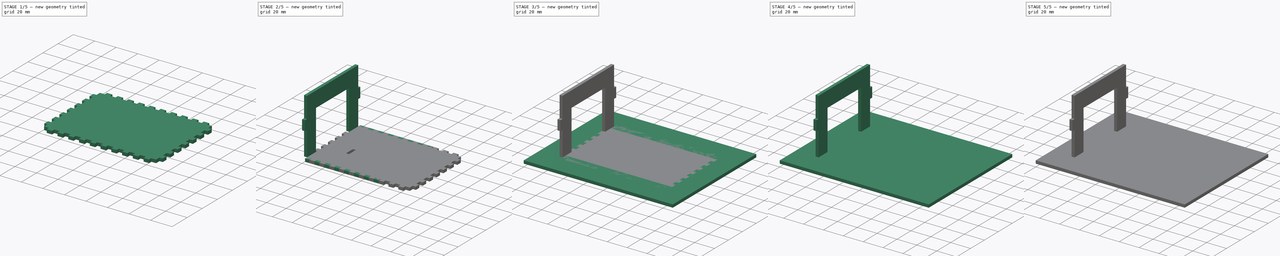
[diagram: build sequence overview — one tinted view per stage of 5, left to right]
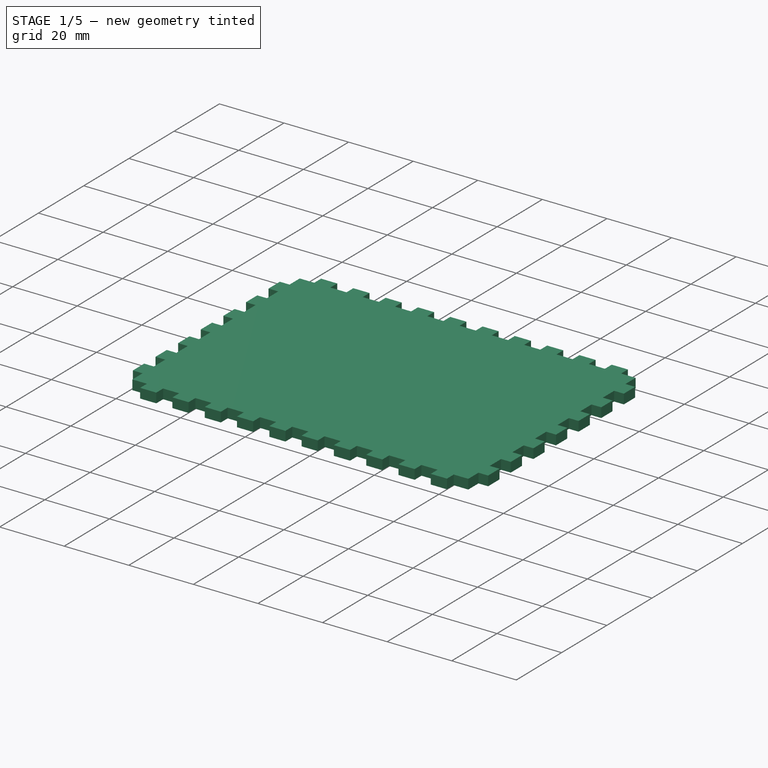
[diagram: stage 1 of 5 — iso view after this stage's code; geometry added in this stage tinted green]
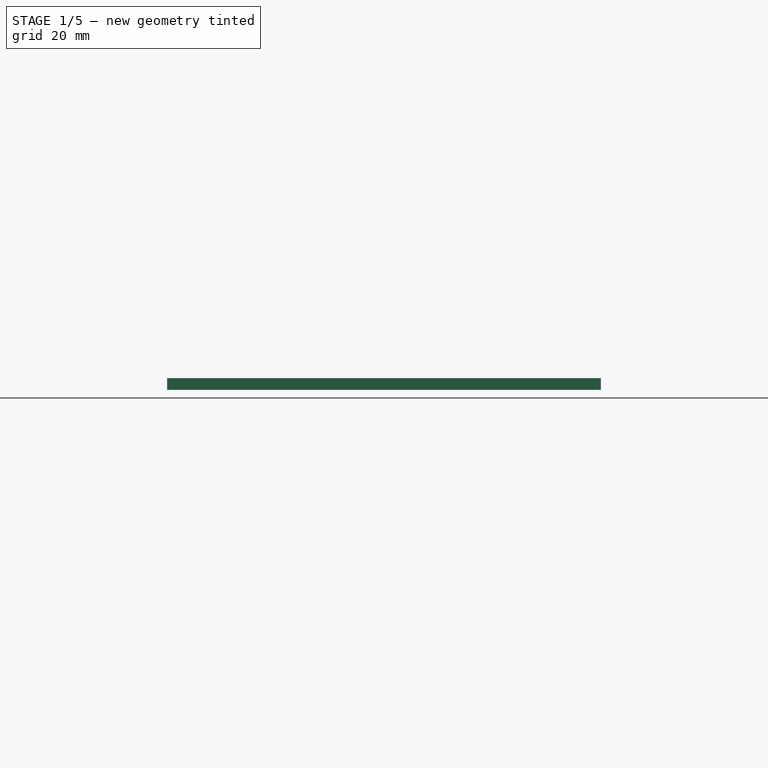
[diagram: stage 1 of 5 — front view after this stage's code; geometry added in this stage tinted green]
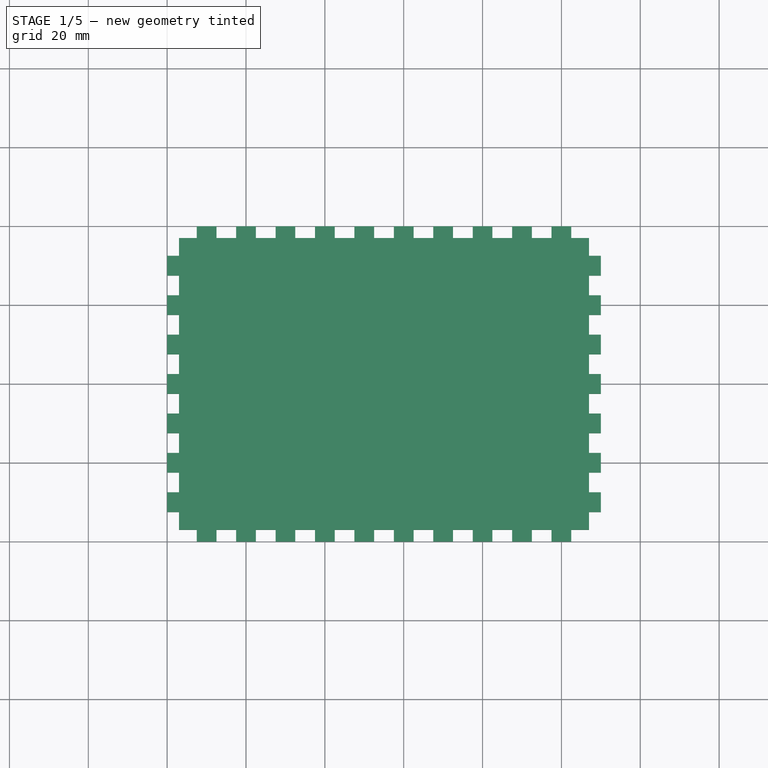
[diagram: stage 1 of 5 — top view after this stage's code; geometry added in this stage tinted green]
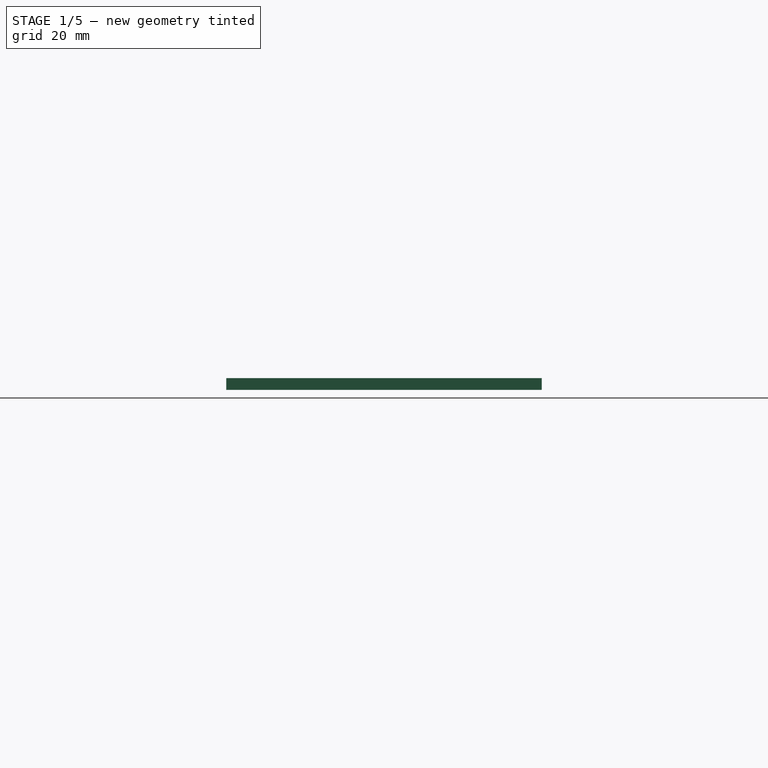
[diagram: stage 1 of 5 — right view after this stage's code; geometry added in this stage tinted green]
FCSTD DOCUMENT  (FreeCAD 0.18.4R)
Label: LED_PS_enclosure
License: All rights reserved
LicenseURL: http://en.wikipedia.org/wiki/All_rights_reserved
objects: Sketcher::SketchObject×28, PartDesign::Pocket×21, PartDesign::Mirrored×20, PartDesign::MultiTransform×16, PartDesign::LinearPattern×12, PartDesign::Pad×7, PartDesign::Body×7
note: 139 computed .brp shape members not serialized (recipe doc carries the construction recipe); baked Part::Feature solids carry a one-line shape summary decoded from their .brp

FEATURE [PartDesign::Body] Body006  label="Transformer_bracket"
  Group = -> [Sketch027,Pad006]
  Origin = -> Origin006
  Placement = pos=(25,0,0) rot=(0,0,1;0rad)
  Tip = -> Pad006
FEATURE [PartDesign::LinearPattern] LinearPattern012
  Direction = -> X_Axis007
  Length = 80
  Occurrences = 9
FEATURE [Sketcher::SketchObject] Sketch029
  MapMode = 5
  Support = -> [XY_Plane007]
  sketch-geometry (4):
    g0: LineSegment StartX=0 StartY=0 StartZ=0 EndX=110 EndY=0 EndZ=0
    g1: LineSegment StartX=110 StartY=0 StartZ=0 EndX=110 EndY=80 EndZ=0
    g2: LineSegment StartX=110 StartY=80 StartZ=0 EndX=0 EndY=80 EndZ=0
    g3: LineSegment StartX=0 StartY=80 StartZ=0 EndX=0 EndY=0 EndZ=0
  constraints (11):
    c: Coincident(g0,g1)
    c: Coincident(g1,g2)
    c: Coincident(g2,g3)
    c: Coincident(g3,g0)
    c: Horizontal(g0)
    c: Horizontal(g2)
    c: Vertical(g1)
    c: Vertical(g3)
    c: DistanceX(g2,g2) = 110
    c: DistanceY(g1,g1) = 80
    c: Coincident(g0,g-1)
FEATURE [PartDesign::Pad] Pad007  label="Frame005"
  Length = 3
  Length2 = 100
  Profile = -> Sketch029
  Type = 0
FEATURE [Sketcher::SketchObject] Sketch030
  ExternalGeometry = -> [Pad007]
  MapMode = 5
  Placement = pos=(0,0,3) rot=(0,0,1;0rad)
  Support = -> [Pad007]
  sketch-geometry (7):
    g0: LineSegment StartX=12.5 StartY=0 StartZ=0 EndX=17.5 EndY=0 EndZ=0
    g1: LineSegment StartX=17.5 StartY=0 StartZ=0 EndX=17.5 EndY=3 EndZ=0
    g2: LineSegment StartX=17.5 StartY=3 StartZ=0 EndX=12.5 EndY=3 EndZ=0
    g3: LineSegment StartX=12.5 StartY=3 StartZ=0 EndX=12.5 EndY=0 EndZ=0
    g4: GeomPoint X=0 Y=40 Z=0
    g5: GeomPoint X=110 Y=40 Z=0
    g6: LineSegment [constr] StartX=0 StartY=40 StartZ=0 EndX=110 EndY=40 EndZ=0
  constraints (16):
    c: Coincident(g0,g1)
    c: Coincident(g1,g2)
    c: Coincident(g2,g3)
    c: Coincident(g3,g0)
    c: Horizontal(g0)
    c: Horizontal(g2)
    c: Vertical(g1)
    c: Vertical(g3)
    c: DistanceX(g2,g2) = 5
    c: DistanceY(g1,g1) = 3
    c: DistanceX(g0) = 12.5
    c: DistanceY(g0) = 0
    c: Symmetric(g-4,g-1,g4)
    c: Symmetric(g-3,g-3,g5)
    c: Coincident(g6,g4)
    c: Coincident(g6,g5)
FEATURE [PartDesign::Mirrored] Mirrored018
  MirrorPlane = -> Sketch030 [Axis0]
FEATURE [PartDesign::Pocket] Pocket023  label="Horizontal_hole005"
  BaseFeature = -> Pad007
  Length = 0
  Length2 = 100
  Profile = -> Sketch030
  Type = 3
  UpToFace = -> Pad007 [Face5]
FEATURE [PartDesign::MultiTransform] MultiTransform014
  BaseFeature = -> Pocket023
  Originals = -> [Pocket023]
  Transformations = -> [LinearPattern012,Mirrored018]
FEATURE [Sketcher::SketchObject] Sketch031
  ExternalGeometry = -> [MultiTransform014]
  MapMode = 5
  Placement = pos=(0,0,3) rot=(0,0,1;0rad)
  Support = -> [MultiTransform014]
  sketch-geometry (11):
    g0: LineSegment StartX=0 StartY=80 StartZ=0 EndX=7.5 EndY=80 EndZ=0
    g1: LineSegment StartX=7.5 StartY=80 StartZ=0 EndX=7.5 EndY=77 EndZ=0
    g2: GeomPoint X=0 Y=40 Z=0
    g3: GeomPoint X=110 Y=40 Z=0
    g4: LineSegment [constr] StartX=0 StartY=40 StartZ=0 EndX=110 EndY=40 EndZ=0
    g5: LineSegment StartX=7.5 StartY=77 StartZ=0 EndX=3 EndY=77 EndZ=0
    g6: LineSegment StartX=3 StartY=77 StartZ=0 EndX=3 EndY=72.5 EndZ=0
    g7: LineSegment StartX=3 StartY=72.5 StartZ=0 EndX=0 EndY=72.5 EndZ=0
    g8: LineSegment StartX=0 StartY=80 StartZ=0 EndX=0 EndY=72.5 EndZ=0
    g9: GeomPoint X=55 Y=40 Z=0
    g10: LineSegment [constr] StartX=55 StartY=80 StartZ=0 EndX=55 EndY=0 EndZ=0
  constraints (26):
    c: Coincident(g0,g1)
    c: Horizontal(g0)
    c: Vertical(g1)
    c: Coincident(g0,g-3)
    c: DistanceY(g1,g1) = 3
    c: Symmetric(g0,g-1,g2)
    c: Symmetric(g-4,g-4,g3)
    c: Coincident(g4,g2)
    c: Coincident(g4,g3)
    c: DistanceX(g0,g7) = 0
    c: Coincident(g8,g7)
    c: Coincident(g5,g1)
    c: Coincident(g5,g6)
    c: Coincident(g6,g7)
    c: Horizontal(g5)
    c: Vertical(g6)
    c: Horizontal(g7)
    c: DistanceX(g0,g0) = 7.5
    c: DistanceX(g7,g7) = 3
    c: DistanceY(g8,g8) = 7.5
    c: Coincident(g8,g0)
    c: Symmetric(g2,g3,g9)
    c: Vertical(g10)
    c: DistanceX(g10,g9) = 0
    c: DistanceY(g-4,g10) = 0
    c: DistanceY(g10,g-4) = 0
FEATURE [Sketcher::SketchObject] Sketch032
  ExternalGeometry = -> [MultiTransform014]
  MapMode = 5
  Placement = pos=(0,0,3) rot=(0,0,1;0rad)
  Support = -> [MultiTransform014]
  sketch-geometry (13):
    g0: LineSegment StartX=0 StartY=67.5 StartZ=0 EndX=3 EndY=67.5 EndZ=0
    g1: LineSegment StartX=3 StartY=67.5 StartZ=0 EndX=3 EndY=62.5 EndZ=0
    g2: LineSegment StartX=3 StartY=62.5 StartZ=0 EndX=0 EndY=62.5 EndZ=0
    g3: LineSegment StartX=0 StartY=62.5 StartZ=0 EndX=0 EndY=67.5 EndZ=0
    g4: GeomPoint X=0 Y=40 Z=0
    g5: GeomPoint X=110 Y=40 Z=0
    g6: LineSegment [constr] StartX=0 StartY=40 StartZ=0 EndX=110 EndY=40 EndZ=0
    g7: GeomPoint X=55 Y=40 Z=0
    g8: LineSegment [constr] StartX=55 StartY=80 StartZ=0 EndX=55 EndY=0 EndZ=0
    g9: LineSegment [constr] StartX=-3e-15 StartY=80 StartZ=0 EndX=110 EndY=80 EndZ=0
    g10: GeomPoint X=55 Y=80 Z=0
    g11: LineSegment [constr] StartX=4.4e-15 StartY=0 StartZ=0 EndX=110 EndY=0 EndZ=0
    g12: GeomPoint X=55 Y=0 Z=0
  constraints (27):
    c: Coincident(g0,g1)
    c: Coincident(g1,g2)
    c: Coincident(g2,g3)
    c: Coincident(g3,g0)
    c: Horizontal(g0)
    c: Horizontal(g2)
    c: Vertical(g1)
    c: Vertical(g3)
    c: DistanceX(g-3,g0) = 0
    c: DistanceY(g0,g-3) = 12.5
    c: DistanceX(g0,g0) = 3
    c: DistanceY(g1,g1) = 5
    c: Symmetric(g-4,g-1,g4)
    c: Symmetric(g-5,g-5,g5)
    c: Coincident(g6,g4)
    c: Coincident(g6,g5)
    c: Symmetric(g4,g5,g7)
    c: Vertical(g8)
    c: DistanceX(g8,g7) = 0
    c: Horizontal(g9)
    c: Coincident(g9,g-5)
    c: Symmetric(g9,g9,g10)
    c: Horizontal(g11)
    c: Coincident(g11,g-5)
    c: Symmetric(g11,g11,g12)
    c: Coincident(g8,g10)
    c: Coincident(g8,g12)
FEATURE [PartDesign::Pocket] Pocket024  label="Vertical_hole002"
  BaseFeature = -> MultiTransform014
  Length = 0
  Length2 = 100
  Profile = -> Sketch032
  Type = 3
  UpToFace = -> MultiTransform014 [Face2]
FEATURE [PartDesign::Mirrored] Mirrored019
  MirrorPlane = -> Sketch032 [Axis1]
FEATURE [PartDesign::Mirrored] Mirrored020
  MirrorPlane = -> Sketch031 [Axis0]
FEATURE [PartDesign::Mirrored] Mirrored021
  MirrorPlane = -> Sketch031 [Axis1]
FEATURE [PartDesign::Body] Body001  label="Long_Side"
  Group = -> [Sketch003,Pad001,Sketch004,Pocket002,MultiTransform002,Sketch007,LinearPattern003,Mirrored002,Sketch006,Pocket003,MultiTransform003,LinearPattern004,Mirrored003,Pocket004,MultiTransform004,Mirrored004,Mirrored005,Sketch028,Pocket022]
  Origin = -> Origin001
  Placement = pos=(0,3,0) rot=(1,0,0;1.5708rad)
  Tip = -> Pocket022
FEATURE [PartDesign::MultiTransform] MultiTransform003
  BaseFeature = -> Pocket003
  Originals = -> [Pocket003]
  Transformations = -> [LinearPattern004,Mirrored003]
FEATURE [PartDesign::LinearPattern] LinearPattern004
  Direction = -> MultiTransform003 [Edge100]
  Length = 50
  Occurrences = 6
FEATURE [PartDesign::Pocket] Pocket004  label="Corner_hole"
  BaseFeature = -> MultiTransform003
  Length = 0
  Length2 = 100
  Profile = -> Sketch006
  Type = 3
  UpToFace = -> MultiTransform003 [Face2]
FEATURE [PartDesign::MultiTransform] MultiTransform004
  BaseFeature = -> Pocket004
  Originals = -> [Pocket004]
  Transformations = -> [Mirrored004,Mirrored005]
FEATURE [PartDesign::LinearPattern] LinearPattern011
  Direction = -> MultiTransform015 [Edge100]
  Length = 50
  Occurrences = 6
FEATURE [PartDesign::Body] Body007  label="Long_Side001"
  Group = -> [Sketch029,Pad007,Sketch030,Pocket023,MultiTransform014,Sketch032,LinearPattern012,Mirrored018,Sketch031,Pocket024,MultiTransform015,LinearPattern011,Mirrored019,Pocket025,MultiTransform016,Mirrored020,Mirrored021,Sketch033,Pocket026]
  Origin = -> Origin007
  Placement = pos=(0,80,0) rot=(1,0,0;1.5708rad)
  Tip = -> Pocket026
FEATURE [PartDesign::MultiTransform] MultiTransform015
  BaseFeature = -> Pocket024
  Originals = -> [Pocket024]
  Transformations = -> [LinearPattern011,Mirrored019]
FEATURE [PartDesign::Pocket] Pocket025  label="Corner_hole003"
  BaseFeature = -> MultiTransform015
  Length = 0
  Length2 = 100
  Profile = -> Sketch031
  Type = 3
  UpToFace = -> MultiTransform015 [Face2]
FEATURE [PartDesign::MultiTransform] MultiTransform016
  BaseFeature = -> Pocket025
  Originals = -> [Pocket025]
  Transformations = -> [Mirrored020,Mirrored021]
FEATURE [PartDesign::Pocket] Pocket026
  BaseFeature = -> MultiTransform016
  Length = 0
  Length2 = 100
  Profile = -> Sketch033
  Type = 3
  UpToFace = -> MultiTransform016 [Face2]
FEATURE [Sketcher::SketchObject] Sketch033
  MapMode = 5
  Placement = pos=(0,0,3) rot=(0,0,1;0rad)
  Support = -> [MultiTransform016]
  sketch-geometry (4):
    g0: LineSegment StartX=25 StartY=38 StartZ=0 EndX=28 EndY=38 EndZ=0
    g1: LineSegment StartX=28 StartY=38 StartZ=0 EndX=28 EndY=28 EndZ=0
    g2: LineSegment StartX=28 StartY=28 StartZ=0 EndX=25 EndY=28 EndZ=0
    g3: LineSegment StartX=25 StartY=28 StartZ=0 EndX=25 EndY=38 EndZ=0
  constraints (12):
    c: Coincident(g0,g1)
    c: Coincident(g1,g2)
    c: Coincident(g2,g3)
    c: Coincident(g3,g0)
    c: Horizontal(g0)
    c: Horizontal(g2)
    c: Vertical(g1)
    c: Vertical(g3)
    c: DistanceY(g1,g1) = 10
    c: DistanceX(g0,g0) = 3
    c: DistanceX(g-1,g2) = 25
    c: DistanceY(g-1,g2) = 28
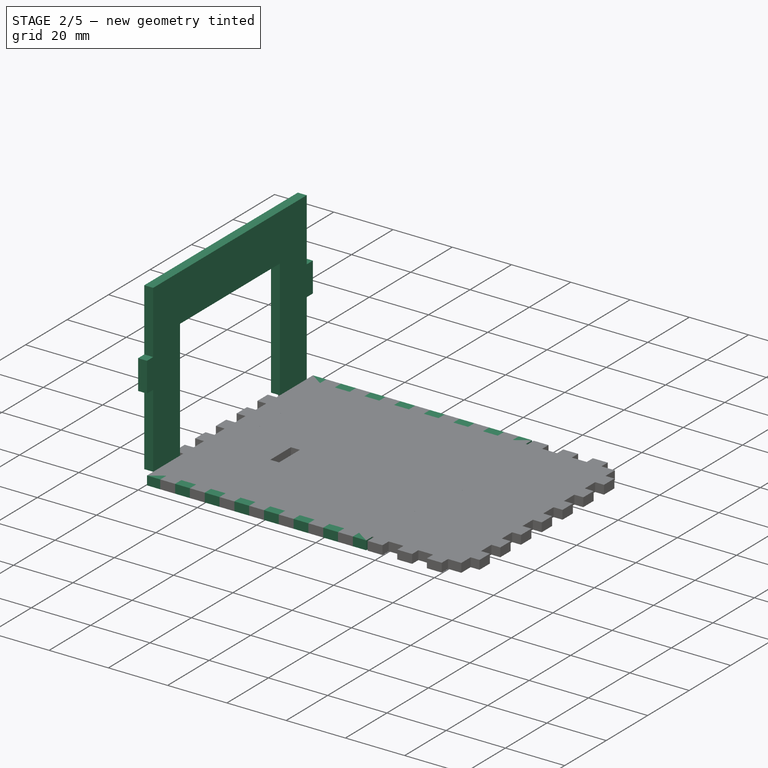
[diagram: stage 2 of 5 — iso view after this stage's code; geometry added in this stage tinted green]
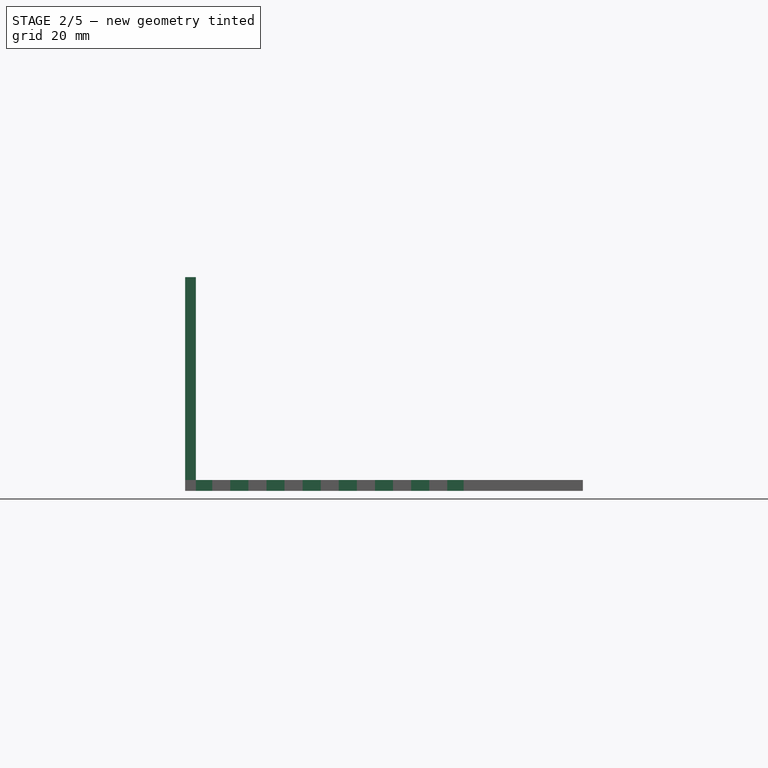
[diagram: stage 2 of 5 — front view after this stage's code; geometry added in this stage tinted green]
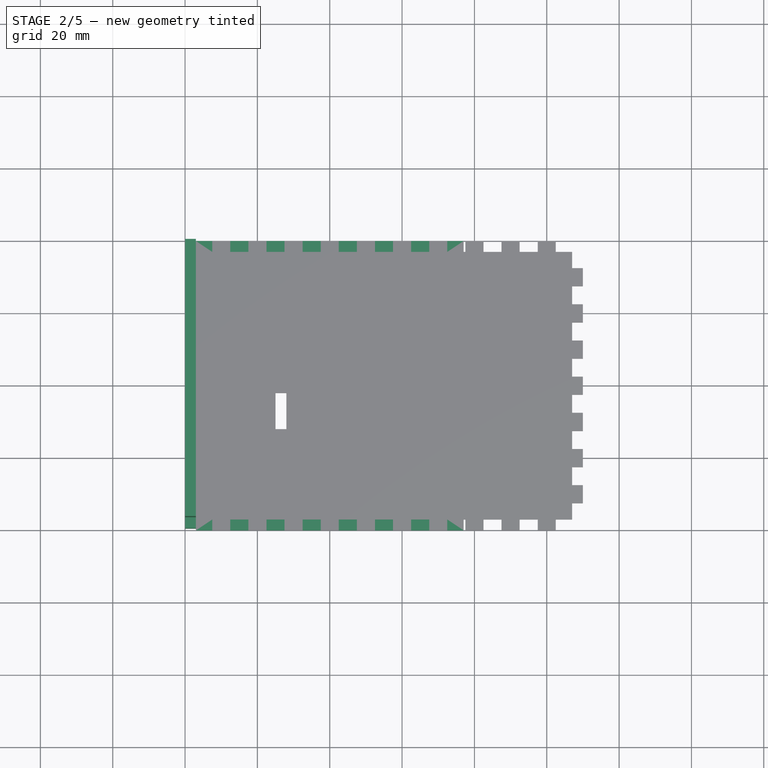
[diagram: stage 2 of 5 — top view after this stage's code; geometry added in this stage tinted green]
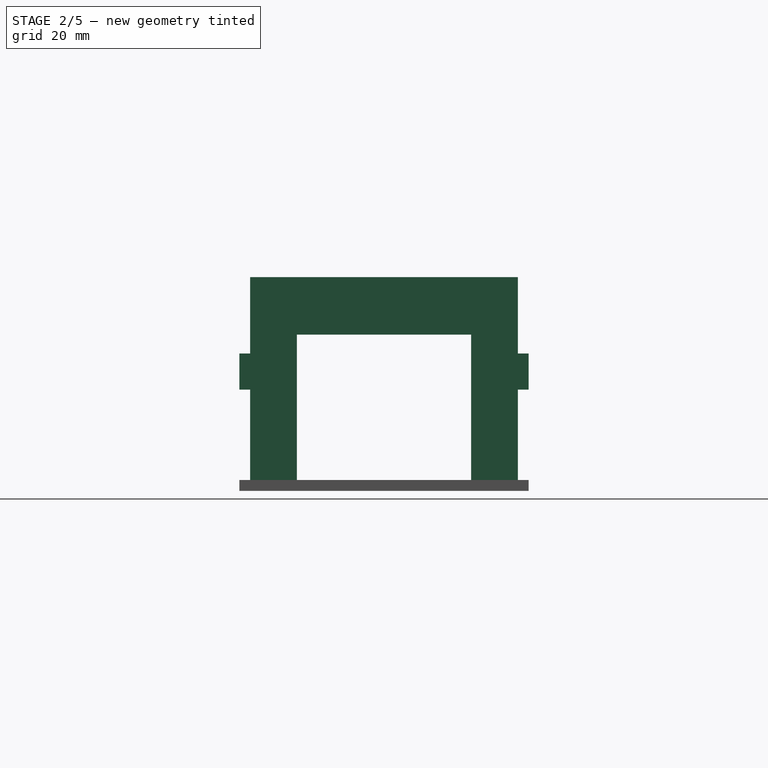
[diagram: stage 2 of 5 — right view after this stage's code; geometry added in this stage tinted green]
FEATURE [PartDesign::Body] Body004  label="Top"
  Group = -> [Sketch016,Pad004,Sketch018,Pocket014,MultiTransform009,LinearPattern007,Mirrored012,Sketch019,Pocket015,MultiTransform010,LinearPattern008,Mirrored013,Sketch020,Pocket016]
  Origin = -> Origin004
  Placement = pos=(0,0,77) rot=(0,0,1;0rad)
  Tip = -> Pocket016
FEATURE [PartDesign::LinearPattern] LinearPattern010
  Direction = -> X_Axis005
  Length = 60
  Occurrences = 7
FEATURE [Sketcher::SketchObject] Sketch022
  MapMode = 5
  Support = -> [XY_Plane005]
  sketch-geometry (4):
    g0: LineSegment StartX=0 StartY=0 StartZ=0 EndX=80 EndY=0 EndZ=0
    g1: LineSegment StartX=80 StartY=0 StartZ=0 EndX=80 EndY=80 EndZ=0
    g2: LineSegment StartX=80 StartY=80 StartZ=0 EndX=0 EndY=80 EndZ=0
    g3: LineSegment StartX=0 StartY=80 StartZ=0 EndX=0 EndY=0 EndZ=0
  constraints (11):
    c: Coincident(g0,g1)
    c: Coincident(g1,g2)
    c: Coincident(g2,g3)
    c: Coincident(g3,g0)
    c: Horizontal(g0)
    c: Horizontal(g2)
    c: Vertical(g1)
    c: Vertical(g3)
    c: DistanceX(g2,g2) = 80
    c: DistanceY(g1,g1) = 80
    c: Coincident(g0,g-1)
FEATURE [PartDesign::Pad] Pad005  label="Frame004"
  Length = 3
  Length2 = 100
  Profile = -> Sketch022
  Type = 0
FEATURE [Sketcher::SketchObject] Sketch021
  ExternalGeometry = -> [Pad005]
  MapMode = 5
  Placement = pos=(0,0,3) rot=(0,0,1;0rad)
  Support = -> [Pad005]
  sketch-geometry (7):
    g0: LineSegment StartX=7.5 StartY=0 StartZ=0 EndX=12.5 EndY=0 EndZ=0
    g1: LineSegment StartX=12.5 StartY=0 StartZ=0 EndX=12.5 EndY=3 EndZ=0
    g2: LineSegment StartX=12.5 StartY=3 StartZ=0 EndX=7.5 EndY=3 EndZ=0
    g3: LineSegment StartX=7.5 StartY=3 StartZ=0 EndX=7.5 EndY=0 EndZ=0
    g4: GeomPoint X=0 Y=40 Z=0
    g5: GeomPoint X=80 Y=40 Z=0
    g6: LineSegment [constr] StartX=0 StartY=40 StartZ=0 EndX=80 EndY=40 EndZ=0
  constraints (16):
    c: Coincident(g0,g1)
    c: Coincident(g1,g2)
    c: Coincident(g2,g3)
    c: Coincident(g3,g0)
    c: Horizontal(g0)
    c: Horizontal(g2)
    c: Vertical(g1)
    c: Vertical(g3)
    c: DistanceX(g2,g2) = 5
    c: DistanceY(g1,g1) = 3
    c: DistanceX(g0) = 7.5
    c: DistanceY(g0) = 0
    c: Symmetric(g-4,g-1,g4)
    c: Symmetric(g-3,g-3,g5)
    c: Coincident(g6,g4)
    c: Coincident(g6,g5)
FEATURE [PartDesign::Pocket] Pocket017  label="Horizontal_hole004"
  BaseFeature = -> Pad005
  Length = 0
  Length2 = 100
  Profile = -> Sketch021
  Type = 3
  UpToFace = -> Pad005 [Face5]
FEATURE [PartDesign::Mirrored] Mirrored014
  MirrorPlane = -> Sketch021 [Axis0]
FEATURE [PartDesign::MultiTransform] MultiTransform011
  BaseFeature = -> Pocket017
  Originals = -> [Pocket017]
  Transformations = -> [LinearPattern010,Mirrored014]
FEATURE [Sketcher::SketchObject] Sketch023
  ExternalGeometry = -> [MultiTransform011]
  MapMode = 5
  Placement = pos=(0,0,3) rot=(0,0,1;0rad)
  Support = -> [MultiTransform011]
  sketch-geometry (9):
    g0: LineSegment StartX=0 StartY=67.5 StartZ=0 EndX=3 EndY=67.5 EndZ=0
    g1: LineSegment StartX=3 StartY=67.5 StartZ=0 EndX=3 EndY=62.5 EndZ=0
    g2: LineSegment StartX=3 StartY=62.5 StartZ=0 EndX=0 EndY=62.5 EndZ=0
    g3: LineSegment StartX=0 StartY=62.5 StartZ=0 EndX=0 EndY=67.5 EndZ=0
    g4: GeomPoint X=0 Y=40 Z=0
    g5: GeomPoint X=80 Y=40 Z=0
    g6: LineSegment [constr] StartX=0 StartY=40 StartZ=0 EndX=80 EndY=40 EndZ=0
    g7: GeomPoint X=40 Y=40 Z=0
    g8: LineSegment [constr] StartX=40 StartY=80 StartZ=0 EndX=40 EndY=0 EndZ=0
  constraints (21):
    c: Coincident(g0,g1)
    c: Coincident(g1,g2)
    c: Coincident(g2,g3)
    c: Coincident(g3,g0)
    c: Horizontal(g0)
    c: Horizontal(g2)
    c: Vertical(g1)
    c: Vertical(g3)
    c: DistanceX(g-4,g0) = 0
    c: DistanceY(g0,g-4) = 12.5
    c: DistanceX(g0,g0) = 3
    c: DistanceY(g1,g1) = 5
    c: Symmetric(g-4,g-1,g4)
    c: Symmetric(g-5,g-5,g5)
    c: Coincident(g6,g4)
    c: Coincident(g6,g5)
    c: Symmetric(g4,g5,g7)
    c: Vertical(g8)
    c: DistanceX(g8,g7) = 0
    c: DistanceY(g-5,g8) = 0
    c: DistanceY(g8,g-5) = 0
FEATURE [PartDesign::Pocket] Pocket018
  BaseFeature = -> MultiTransform011
  Length = 0
  Length2 = 100
  Profile = -> Sketch023
  Type = 3
  UpToFace = -> MultiTransform011 [Face2]
FEATURE [PartDesign::Mirrored] Mirrored015
  MirrorPlane = -> Sketch023 [Axis1]
FEATURE [Sketcher::SketchObject] Sketch027
  MapMode = 5
  Placement = pos=(0,0,0) rot=(0.57735,0.57735,0.57735;2.0944rad)
  Support = -> [YZ_Plane006]
  sketch-geometry (16):
    g0: LineSegment StartX=15.9 StartY=3 StartZ=0 EndX=3 EndY=3 EndZ=0
    g1: LineSegment StartX=3 StartY=3 StartZ=0 EndX=3 EndY=28 EndZ=0
    g2: LineSegment StartX=3 StartY=28 StartZ=0 EndX=0 EndY=28 EndZ=0
    g3: LineSegment StartX=0 StartY=28 StartZ=0 EndX=0 EndY=38 EndZ=0
    g4: LineSegment StartX=0 StartY=38 StartZ=0 EndX=3 EndY=38 EndZ=0
    g5: LineSegment StartX=3 StartY=38 StartZ=0 EndX=3 EndY=59.1 EndZ=0
    g6: LineSegment StartX=3 StartY=59.1 StartZ=0 EndX=77 EndY=59.1 EndZ=0
    g7: LineSegment StartX=77 StartY=59.1 StartZ=0 EndX=77 EndY=38 EndZ=0
    g8: LineSegment StartX=77 StartY=38 StartZ=0 EndX=80 EndY=38 EndZ=0
    g9: LineSegment StartX=80 StartY=38 StartZ=0 EndX=80 EndY=28 EndZ=0
    g10: LineSegment StartX=80 StartY=28 StartZ=0 EndX=77 EndY=28 EndZ=0
    g11: LineSegment StartX=77 StartY=28 StartZ=0 EndX=77 EndY=3 EndZ=0
    g12: LineSegment StartX=77 StartY=3 StartZ=0 EndX=64.1 EndY=3 EndZ=0
    g13: LineSegment StartX=64.1 StartY=3 StartZ=0 EndX=64.1 EndY=43.2 EndZ=0
    g14: LineSegment StartX=64.1 StartY=43.2 StartZ=0 EndX=15.9 EndY=43.2 EndZ=0
    g15: LineSegment StartX=15.9 StartY=43.2 StartZ=0 EndX=15.9 EndY=3 EndZ=0
  constraints (48):
    c: Horizontal(g10)
    c: Horizontal(g8)
    c: Horizontal(g6)
    c: Horizontal(g14)
    c: Horizontal(g0)
    c: Horizontal(g2)
    c: Horizontal(g4)
    c: Horizontal(g12)
    c: Vertical(g3)
    c: Vertical(g1)
    c: Vertical(g15)
    c: Vertical(g13)
    c: Vertical(g9)
    c: Vertical(g11)
    c: Vertical(g7)
    c: Vertical(g5)
    c: Coincident(g5,g6)
    c: Coincident(g6,g7)
    c: Coincident(g7,g8)
    c: Coincident(g8,g9)
    c: Coincident(g9,g10)
    c: Coincident(g10,g11)
    c: Coincident(g12,g11)
    c: Coincident(g12,g13)
    c: Coincident(g13,g14)
    c: Coincident(g15,g14)
    c: Coincident(g15,g0)
    c: Coincident(g0,g1)
    c: Coincident(g2,g1)
    c: Coincident(g2,g3)
    c: Coincident(g3,g4)
    c: Coincident(g4,g5)
    c: DistanceX(g4,g4) = 3
    c: Equal(g4,g2)
    c: Equal(g2,g8)
    c: Equal(g8,g10)
    c: DistanceY(g3,g3) = 10
    c: Equal(g3,g9)
    c: DistanceY(g15,g15) = 40.2
    c: Equal(g15,g13)
    c: DistanceX(g6,g6) = 74
    c: DistanceX(g14,g14) = 48.2
    c: DistanceX(g0,g0) = 12.9
    c: DistanceY(g13,g6) = 15.9
    c: DistanceY(g0,g2) = 25
    c: Equal(g1,g11)
    c: DistanceX(g-1,g2) = 0
    c: DistanceY(g-1,g0) = 3
FEATURE [PartDesign::Pad] Pad006
  Length = 3
  Length2 = 100
  Placement = pos=(0,0,0) rot=(0.57735,0.57735,0.57735;2.0944rad)
  Profile = -> Sketch027
  Type = 0
FEATURE [PartDesign::Mirrored] Mirrored008
  MirrorPlane = -> Sketch015 [Axis1]
FEATURE [PartDesign::Mirrored] Mirrored009
  MirrorPlane = -> Sketch015 [Axis2]
FEATURE [PartDesign::LinearPattern] LinearPattern009
  Direction = -> MultiTransform012 [Edge84]
  Length = 50
  Occurrences = 6
FEATURE [PartDesign::Body] Body005  label="Short_Side_Connectors"
  Group = -> [Sketch022,Pad005,Sketch021,Pocket017,MultiTransform011,LinearPattern010,Mirrored014,Sketch023,Pocket018,MultiTransform012,LinearPattern009,Mirrored015,Sketch024,Pocket019,MultiTransform013,Mirrored016,Mirrored017,Sketch025,Pocket020,Sketch026,Pocket021]
  Origin = -> Origin005
  Placement = pos=(110,0,0) rot=(0,-1,0;1.5708rad)
  Tip = -> Pocket021
FEATURE [PartDesign::MultiTransform] MultiTransform012
  BaseFeature = -> Pocket018
  Originals = -> [Pocket018]
  Transformations = -> [LinearPattern009,Mirrored015]
FEATURE [Sketcher::SketchObject] Sketch024
  ExternalGeometry = -> [MultiTransform012]
  MapMode = 5
  Placement = pos=(0,0,3) rot=(0,0,1;0rad)
  Support = -> [MultiTransform012]
  sketch-geometry (9):
    g0: LineSegment StartX=3 StartY=80 StartZ=0 EndX=0 EndY=80 EndZ=0
    g1: LineSegment StartX=0 StartY=80 StartZ=0 EndX=0 EndY=72.5 EndZ=0
    g2: LineSegment StartX=0 StartY=72.5 StartZ=0 EndX=3 EndY=72.5 EndZ=0
    g3: LineSegment StartX=3 StartY=72.5 StartZ=0 EndX=3 EndY=80 EndZ=0
    g4: LineSegment [constr] StartX=0 StartY=80 StartZ=0 EndX=80 EndY=80 EndZ=0
    g5: GeomPoint X=40 Y=80 Z=0
    g6: LineSegment [constr] StartX=40 StartY=80 StartZ=0 EndX=40 EndY=0 EndZ=0
    g7: GeomPoint X=40 Y=40 Z=0
    g8: LineSegment [constr] StartX=0 StartY=40 StartZ=0 EndX=80 EndY=40 EndZ=0
  constraints (22):
    c: Coincident(g0,g1)
    c: Coincident(g1,g2)
    c: Coincident(g2,g3)
    c: Coincident(g3,g0)
    c: Horizontal(g0)
    c: Horizontal(g2)
    c: Vertical(g1)
    c: Vertical(g3)
    c: DistanceY(g3,g3) = 7.5
    c: DistanceX(g0,g0) = 3
    c: Coincident(g0,g-3)
    c: Coincident(g4,g0)
    c: Coincident(g4,g-4)
    c: Symmetric(g0,g4,g5)
    c: Coincident(g6,g5)
    c: Vertical(g6)
    c: DistanceY(g-5,g6) = 0
    c: Symmetric(g5,g6,g7)
    c: Horizontal(g8)
    c: DistanceY(g7,g8) = 0
    c: DistanceX(g8,g4) = 0
    c: DistanceX(g0,g8) = 0
FEATURE [PartDesign::Pocket] Pocket019  label="Corner_hole002"
  BaseFeature = -> MultiTransform012
  Length = 0
  Length2 = 100
  Profile = -> Sketch024
  Type = 3
  UpToFace = -> MultiTransform012 [Face2]
FEATURE [PartDesign::MultiTransform] MultiTransform013
  BaseFeature = -> Pocket019
  Originals = -> [Pocket019]
  Transformations = -> [Mirrored016,Mirrored017]
FEATURE [PartDesign::Mirrored] Mirrored016
  MirrorPlane = -> Sketch024 [Axis1]
FEATURE [PartDesign::Mirrored] Mirrored017
  MirrorPlane = -> Sketch024 [Axis2]
FEATURE [Sketcher::SketchObject] Sketch025
  MapMode = 5
  Placement = pos=(0,0,0) rot=(1,0,0;3.14159rad)
  Support = -> [MultiTransform013]
  sketch-geometry (4):
    g0: LineSegment StartX=37.5 StartY=-19 StartZ=0 EndX=10 EndY=-19 EndZ=0
    g1: LineSegment StartX=10 StartY=-19 StartZ=0 EndX=10 EndY=-61 EndZ=0
    g2: LineSegment StartX=10 StartY=-61 StartZ=0 EndX=37.5 EndY=-61 EndZ=0
    g3: LineSegment StartX=37.5 StartY=-61 StartZ=0 EndX=37.5 EndY=-19 EndZ=0
  constraints (12):
    c: Coincident(g0,g1)
    c: Coincident(g1,g2)
    c: Coincident(g2,g3)
    c: Coincident(g3,g0)
    c: Horizontal(g0)
    c: Horizontal(g2)
    c: Vertical(g1)
    c: Vertical(g3)
    c: DistanceY(g3,g3) = 42
    c: DistanceX(g0,g0) = 27.5
    c: DistanceY(g0,g-1) = 19
    c: DistanceX(g-1,g0) = 10
FEATURE [PartDesign::Pocket] Pocket020  label="IEC_hole"
  BaseFeature = -> MultiTransform013
  Length = 0
  Length2 = 100
  Profile = -> Sketch025
  Type = 3
  UpToFace = -> MultiTransform013 [Face4]
FEATURE [Sketcher::SketchObject] Sketch028
  MapMode = 5
  Placement = pos=(0,0,3) rot=(0,0,1;0rad)
  Support = -> [MultiTransform004]
  sketch-geometry (4):
    g0: LineSegment StartX=25 StartY=38 StartZ=0 EndX=28 EndY=38 EndZ=0
    g1: LineSegment StartX=28 StartY=38 StartZ=0 EndX=28 EndY=28 EndZ=0
    g2: LineSegment StartX=28 StartY=28 StartZ=0 EndX=25 EndY=28 EndZ=0
    g3: LineSegment StartX=25 StartY=28 StartZ=0 EndX=25 EndY=38 EndZ=0
  constraints (12):
    c: Coincident(g0,g1)
    c: Coincident(g1,g2)
    c: Coincident(g2,g3)
    c: Coincident(g3,g0)
    c: Horizontal(g0)
    c: Horizontal(g2)
    c: Vertical(g1)
    c: Vertical(g3)
    c: DistanceY(g1,g1) = 10
    c: DistanceX(g0,g0) = 3
    c: DistanceX(g-1,g2) = 25
    c: DistanceY(g-1,g2) = 28
FEATURE [PartDesign::Pocket] Pocket022
  BaseFeature = -> MultiTransform004
  Length = 0
  Length2 = 100
  Profile = -> Sketch028
  Type = 3
  UpToFace = -> MultiTransform004 [Face2]
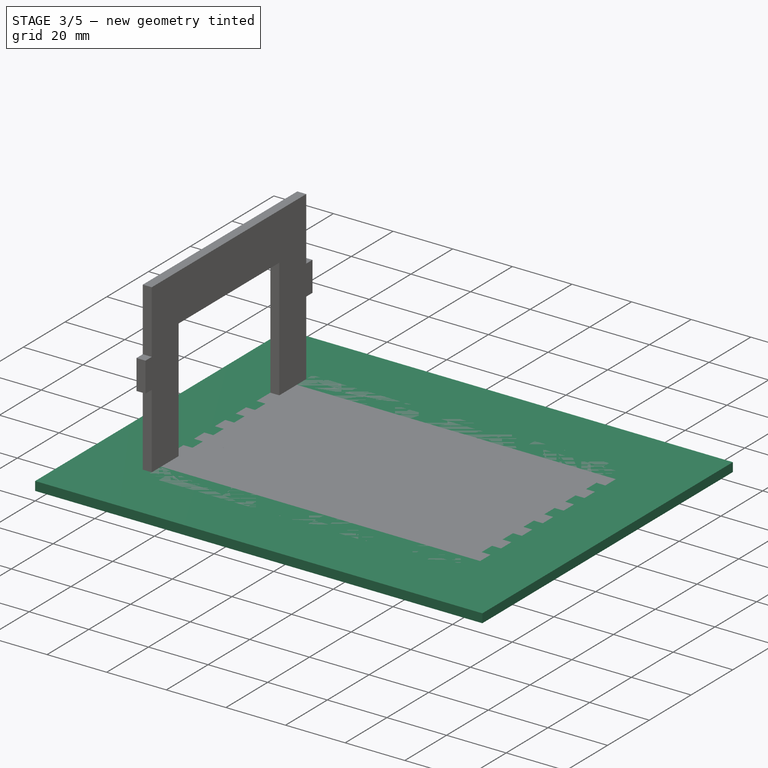
[diagram: stage 3 of 5 — iso view after this stage's code; geometry added in this stage tinted green]
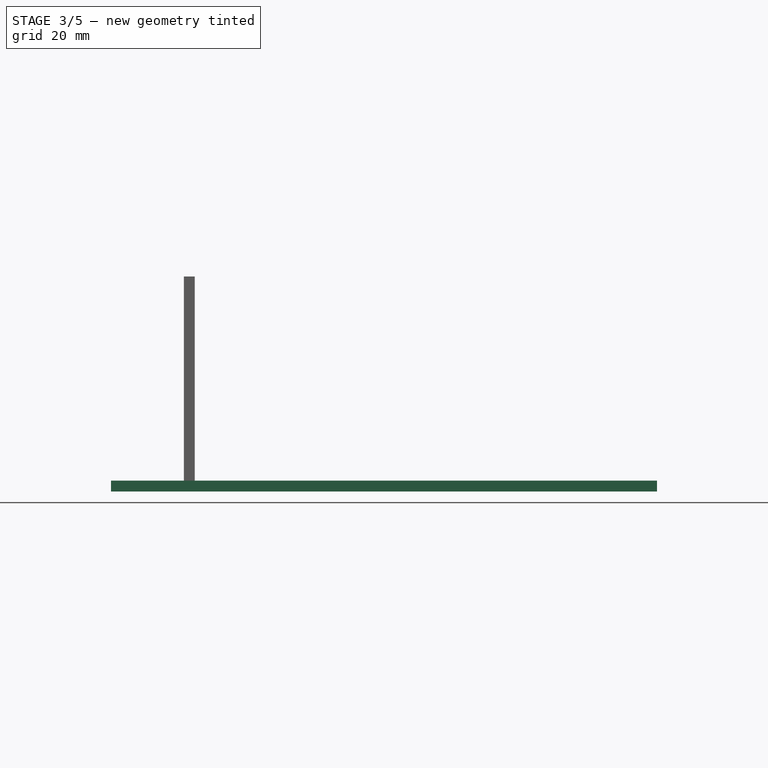
[diagram: stage 3 of 5 — front view after this stage's code; geometry added in this stage tinted green]
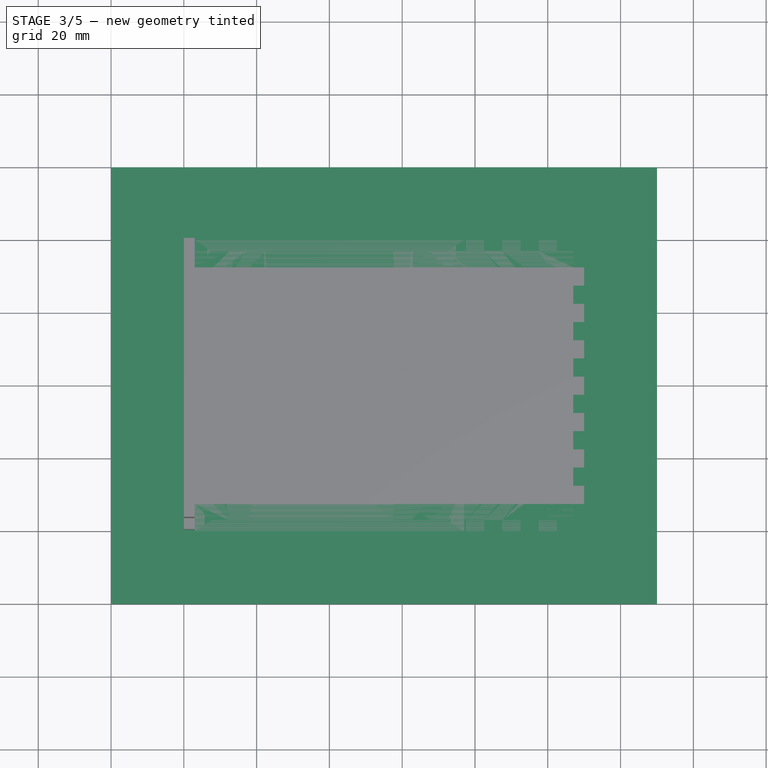
[diagram: stage 3 of 5 — top view after this stage's code; geometry added in this stage tinted green]
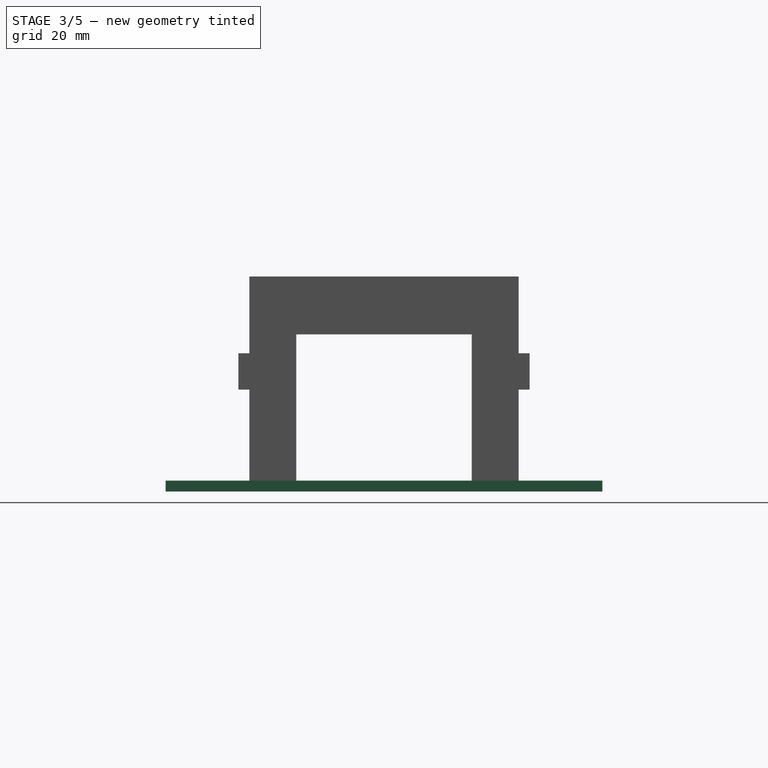
[diagram: stage 3 of 5 — right view after this stage's code; geometry added in this stage tinted green]
FEATURE [PartDesign::Body] Body  label="Bottom"
  Group = -> [Sketch,Pad,Sketch001,Pocket,MultiTransform,LinearPattern,Mirrored,Sketch002,Pocket001,MultiTransform001,LinearPattern001,Mirrored001]
  Origin = -> Origin
  Tip = -> MultiTransform001
FEATURE [PartDesign::LinearPattern] LinearPattern003
  Direction = -> X_Axis001
  Length = 80
  Occurrences = 9
FEATURE [Sketcher::SketchObject] Sketch003
  MapMode = 5
  Support = -> [XY_Plane001]
  sketch-geometry (4):
    g0: LineSegment StartX=0 StartY=0 StartZ=0 EndX=110 EndY=0 EndZ=0
    g1: LineSegment StartX=110 StartY=0 StartZ=0 EndX=110 EndY=80 EndZ=0
    g2: LineSegment StartX=110 StartY=80 StartZ=0 EndX=0 EndY=80 EndZ=0
    g3: LineSegment StartX=0 StartY=80 StartZ=0 EndX=0 EndY=0 EndZ=0
  constraints (11):
    c: Coincident(g0,g1)
    c: Coincident(g1,g2)
    c: Coincident(g2,g3)
    c: Coincident(g3,g0)
    c: Horizontal(g0)
    c: Horizontal(g2)
    c: Vertical(g1)
    c: Vertical(g3)
    c: DistanceX(g2,g2) = 110
    c: DistanceY(g1,g1) = 80
    c: Coincident(g0,g-1)
FEATURE [PartDesign::Pad] Pad001  label="Frame001"
  Length = 3
  Length2 = 100
  Profile = -> Sketch003
  Type = 0
FEATURE [Sketcher::SketchObject] Sketch004
  ExternalGeometry = -> [Pad001]
  MapMode = 5
  Placement = pos=(0,0,3) rot=(0,0,1;0rad)
  Support = -> [Pad001]
  sketch-geometry (7):
    g0: LineSegment StartX=12.5 StartY=0 StartZ=0 EndX=17.5 EndY=0 EndZ=0
    g1: LineSegment StartX=17.5 StartY=0 StartZ=0 EndX=17.5 EndY=3 EndZ=0
    g2: LineSegment StartX=17.5 StartY=3 StartZ=0 EndX=12.5 EndY=3 EndZ=0
    g3: LineSegment StartX=12.5 StartY=3 StartZ=0 EndX=12.5 EndY=0 EndZ=0
    g4: GeomPoint X=0 Y=40 Z=0
    g5: GeomPoint X=110 Y=40 Z=0
    g6: LineSegment [constr] StartX=0 StartY=40 StartZ=0 EndX=110 EndY=40 EndZ=0
  constraints (16):
    c: Coincident(g0,g1)
    c: Coincident(g1,g2)
    c: Coincident(g2,g3)
    c: Coincident(g3,g0)
    c: Horizontal(g0)
    c: Horizontal(g2)
    c: Vertical(g1)
    c: Vertical(g3)
    c: DistanceX(g2,g2) = 5
    c: DistanceY(g1,g1) = 3
    c: DistanceX(g0) = 12.5
    c: DistanceY(g0) = 0
    c: Symmetric(g-4,g-1,g4)
    c: Symmetric(g-3,g-3,g5)
    c: Coincident(g6,g4)
    c: Coincident(g6,g5)
FEATURE [PartDesign::Mirrored] Mirrored002
  MirrorPlane = -> Sketch004 [Axis0]
FEATURE [PartDesign::Pocket] Pocket002  label="Horizontal_hole001"
  BaseFeature = -> Pad001
  Length = 0
  Length2 = 100
  Profile = -> Sketch004
  Type = 3
  UpToFace = -> Pad001 [Face5]
FEATURE [PartDesign::MultiTransform] MultiTransform002
  BaseFeature = -> Pocket002
  Originals = -> [Pocket002]
  Transformations = -> [LinearPattern003,Mirrored002]
FEATURE [Sketcher::SketchObject] Sketch006
  ExternalGeometry = -> [MultiTransform002]
  MapMode = 5
  Placement = pos=(0,0,3) rot=(0,0,1;0rad)
  Support = -> [MultiTransform002]
  sketch-geometry (11):
    g0: LineSegment StartX=0 StartY=80 StartZ=0 EndX=7.5 EndY=80 EndZ=0
    g1: LineSegment StartX=7.5 StartY=80 StartZ=0 EndX=7.5 EndY=77 EndZ=0
    g2: GeomPoint X=0 Y=40 Z=0
    g3: GeomPoint X=110 Y=40 Z=0
    g4: LineSegment [constr] StartX=0 StartY=40 StartZ=0 EndX=110 EndY=40 EndZ=0
    g5: LineSegment StartX=7.5 StartY=77 StartZ=0 EndX=3 EndY=77 EndZ=0
    g6: LineSegment StartX=3 StartY=77 StartZ=0 EndX=3 EndY=72.5 EndZ=0
    g7: LineSegment StartX=3 StartY=72.5 StartZ=0 EndX=0 EndY=72.5 EndZ=0
    g8: LineSegment StartX=0 StartY=80 StartZ=0 EndX=0 EndY=72.5 EndZ=0
    g9: GeomPoint X=55 Y=40 Z=0
    g10: LineSegment [constr] StartX=55 StartY=80 StartZ=0 EndX=55 EndY=0 EndZ=0
  constraints (26):
    c: Coincident(g0,g1)
    c: Horizontal(g0)
    c: Vertical(g1)
    c: Coincident(g0,g-3)
    c: DistanceY(g1,g1) = 3
    c: Symmetric(g0,g-1,g2)
    c: Symmetric(g-4,g-4,g3)
    c: Coincident(g4,g2)
    c: Coincident(g4,g3)
    c: DistanceX(g0,g7) = 0
    c: Coincident(g8,g7)
    c: Coincident(g5,g1)
    c: Coincident(g5,g6)
    c: Coincident(g6,g7)
    c: Horizontal(g5)
    c: Vertical(g6)
    c: Horizontal(g7)
    c: DistanceX(g0,g0) = 7.5
    c: DistanceX(g7,g7) = 3
    c: DistanceY(g8,g8) = 7.5
    c: Coincident(g8,g0)
    c: Symmetric(g2,g3,g9)
    c: Vertical(g10)
    c: DistanceX(g10,g9) = 0
    c: DistanceY(g-4,g10) = 0
    c: DistanceY(g10,g-4) = 0
FEATURE [Sketcher::SketchObject] Sketch007
  ExternalGeometry = -> [MultiTransform002]
  MapMode = 5
  Placement = pos=(0,0,3) rot=(0,0,1;0rad)
  Support = -> [MultiTransform002]
  sketch-geometry (13):
    g0: LineSegment StartX=0 StartY=67.5 StartZ=0 EndX=3 EndY=67.5 EndZ=0
    g1: LineSegment StartX=3 StartY=67.5 StartZ=0 EndX=3 EndY=62.5 EndZ=0
    g2: LineSegment StartX=3 StartY=62.5 StartZ=0 EndX=0 EndY=62.5 EndZ=0
    g3: LineSegment StartX=0 StartY=62.5 StartZ=0 EndX=0 EndY=67.5 EndZ=0
    g4: GeomPoint X=0 Y=40 Z=0
    g5: GeomPoint X=110 Y=40 Z=0
    g6: LineSegment [constr] StartX=0 StartY=40 StartZ=0 EndX=110 EndY=40 EndZ=0
    g7: GeomPoint X=55 Y=40 Z=0
    g8: LineSegment [constr] StartX=55 StartY=80 StartZ=0 EndX=55 EndY=0 EndZ=0
    g9: LineSegment [constr] StartX=-3e-15 StartY=80 StartZ=0 EndX=110 EndY=80 EndZ=0
    g10: GeomPoint X=55 Y=80 Z=0
    g11: LineSegment [constr] StartX=4.4e-15 StartY=0 StartZ=0 EndX=110 EndY=0 EndZ=0
    g12: GeomPoint X=55 Y=0 Z=0
  constraints (27):
    c: Coincident(g0,g1)
    c: Coincident(g1,g2)
    c: Coincident(g2,g3)
    c: Coincident(g3,g0)
    c: Horizontal(g0)
    c: Horizontal(g2)
    c: Vertical(g1)
    c: Vertical(g3)
    c: DistanceX(g-3,g0) = 0
    c: DistanceY(g0,g-3) = 12.5
    c: DistanceX(g0,g0) = 3
    c: DistanceY(g1,g1) = 5
    c: Symmetric(g-4,g-1,g4)
    c: Symmetric(g-5,g-5,g5)
    c: Coincident(g6,g4)
    c: Coincident(g6,g5)
    c: Symmetric(g4,g5,g7)
    c: Vertical(g8)
    c: DistanceX(g8,g7) = 0
    c: Horizontal(g9)
    c: Coincident(g9,g-5)
    c: Symmetric(g9,g9,g10)
    c: Horizontal(g11)
    c: Coincident(g11,g-5)
    c: Symmetric(g11,g11,g12)
    c: Coincident(g8,g10)
    c: Coincident(g8,g12)
FEATURE [PartDesign::Pocket] Pocket003  label="Vertical_hole001"
  BaseFeature = -> MultiTransform002
  Length = 0
  Length2 = 100
  Profile = -> Sketch007
  Type = 3
  UpToFace = -> MultiTransform002 [Face2]
FEATURE [PartDesign::Mirrored] Mirrored003
  MirrorPlane = -> Sketch007 [Axis1]
FEATURE [PartDesign::Mirrored] Mirrored004
  MirrorPlane = -> Sketch006 [Axis0]
FEATURE [PartDesign::Mirrored] Mirrored005
  MirrorPlane = -> Sketch006 [Axis1]
FEATURE [Sketcher::SketchObject] Sketch013
  MapMode = 5
  Support = -> [XY_Plane003]
  sketch-geometry (4):
    g0: LineSegment StartX=0 StartY=0 StartZ=0 EndX=80 EndY=0 EndZ=0
    g1: LineSegment StartX=80 StartY=0 StartZ=0 EndX=80 EndY=80 EndZ=0
    g2: LineSegment StartX=80 StartY=80 StartZ=0 EndX=0 EndY=80 EndZ=0
    g3: LineSegment StartX=0 StartY=80 StartZ=0 EndX=0 EndY=0 EndZ=0
  constraints (11):
    c: Coincident(g0,g1)
    c: Coincident(g1,g2)
    c: Coincident(g2,g3)
    c: Coincident(g3,g0)
    c: Horizontal(g0)
    c: Horizontal(g2)
    c: Vertical(g1)
    c: Vertical(g3)
    c: DistanceX(g2,g2) = 80
    c: DistanceY(g1,g1) = 80
    c: Coincident(g0,g-1)
FEATURE [PartDesign::Pad] Pad003  label="Frame003"
  Length = 3
  Length2 = 100
  Profile = -> Sketch013
  Type = 0
FEATURE [Sketcher::SketchObject] Sketch012
  ExternalGeometry = -> [Pad003]
  MapMode = 5
  Placement = pos=(0,0,3) rot=(0,0,1;0rad)
  Support = -> [Pad003]
  sketch-geometry (7):
    g0: LineSegment StartX=7.5 StartY=0 StartZ=0 EndX=12.5 EndY=0 EndZ=0
    g1: LineSegment StartX=12.5 StartY=0 StartZ=0 EndX=12.5 EndY=3 EndZ=0
    g2: LineSegment StartX=12.5 StartY=3 StartZ=0 EndX=7.5 EndY=3 EndZ=0
    g3: LineSegment StartX=7.5 StartY=3 StartZ=0 EndX=7.5 EndY=0 EndZ=0
    g4: GeomPoint X=0 Y=40 Z=0
    g5: GeomPoint X=80 Y=40 Z=0
    g6: LineSegment [constr] StartX=0 StartY=40 StartZ=0 EndX=80 EndY=40 EndZ=0
  constraints (16):
    c: Coincident(g0,g1)
    c: Coincident(g1,g2)
    c: Coincident(g2,g3)
    c: Coincident(g3,g0)
    c: Horizontal(g0)
    c: Horizontal(g2)
    c: Vertical(g1)
    c: Vertical(g3)
    c: DistanceX(g2,g2) = 5
    c: DistanceY(g1,g1) = 3
    c: DistanceX(g0) = 7.5
    c: DistanceY(g0) = 0
    c: Symmetric(g-4,g-1,g4)
    c: Symmetric(g-3,g-3,g5)
    c: Coincident(g6,g4)
    c: Coincident(g6,g5)
FEATURE [PartDesign::Pocket] Pocket010  label="Horizontal_hole003"
  BaseFeature = -> Pad003
  Length = 0
  Length2 = 100
  Profile = -> Sketch012
  Type = 3
  UpToFace = -> Pad003 [Face5]
FEATURE [PartDesign::LinearPattern] LinearPattern005
  Direction = -> X_Axis003
  Length = 60
  Occurrences = 7
FEATURE [PartDesign::Mirrored] Mirrored006
  MirrorPlane = -> Sketch012 [Axis0]
FEATURE [PartDesign::MultiTransform] MultiTransform005
  BaseFeature = -> Pocket010
  Originals = -> [Pocket010]
  Transformations = -> [LinearPattern005,Mirrored006]
FEATURE [Sketcher::SketchObject] Sketch014
  ExternalGeometry = -> [MultiTransform005]
  MapMode = 5
  Placement = pos=(0,0,3) rot=(0,0,1;0rad)
  Support = -> [MultiTransform005]
  sketch-geometry (9):
    g0: LineSegment StartX=0 StartY=67.5 StartZ=0 EndX=3 EndY=67.5 EndZ=0
    g1: LineSegment StartX=3 StartY=67.5 StartZ=0 EndX=3 EndY=62.5 EndZ=0
    g2: LineSegment StartX=3 StartY=62.5 StartZ=0 EndX=0 EndY=62.5 EndZ=0
    g3: LineSegment StartX=0 StartY=62.5 StartZ=0 EndX=0 EndY=67.5 EndZ=0
    g4: GeomPoint X=0 Y=40 Z=0
    g5: GeomPoint X=80 Y=40 Z=0
    g6: LineSegment [constr] StartX=0 StartY=40 StartZ=0 EndX=80 EndY=40 EndZ=0
    g7: GeomPoint X=40 Y=40 Z=0
    g8: LineSegment [constr] StartX=40 StartY=80 StartZ=0 EndX=40 EndY=0 EndZ=0
  constraints (21):
    c: Coincident(g0,g1)
    c: Coincident(g1,g2)
    c: Coincident(g2,g3)
    c: Coincident(g3,g0)
    c: Horizontal(g0)
    c: Horizontal(g2)
    c: Vertical(g1)
    c: Vertical(g3)
    c: DistanceX(g-4,g0) = 0
    c: DistanceY(g0,g-4) = 12.5
    c: DistanceX(g0,g0) = 3
    c: DistanceY(g1,g1) = 5
    c: Symmetric(g-4,g-1,g4)
    c: Symmetric(g-5,g-5,g5)
    c: Coincident(g6,g4)
    c: Coincident(g6,g5)
    c: Symmetric(g4,g5,g7)
    c: Vertical(g8)
    c: DistanceX(g8,g7) = 0
    c: DistanceY(g-5,g8) = 0
    c: DistanceY(g8,g-5) = 0
FEATURE [PartDesign::Pocket] Pocket011
  BaseFeature = -> MultiTransform005
  Length = 0
  Length2 = 100
  Profile = -> Sketch014
  Type = 3
  UpToFace = -> MultiTransform005 [Face2]
FEATURE [PartDesign::Mirrored] Mirrored007
  MirrorPlane = -> Sketch014 [Axis1]
FEATURE [Sketcher::SketchObject] Sketch016
  MapMode = 5
  Support = -> [XY_Plane004]
  sketch-geometry (4):
    g0: LineSegment StartX=-20 StartY=100 StartZ=0 EndX=130 EndY=100 EndZ=0
    g1: LineSegment StartX=130 StartY=100 StartZ=0 EndX=130 EndY=-20 EndZ=0
    g2: LineSegment StartX=130 StartY=-20 StartZ=0 EndX=-20 EndY=-20 EndZ=0
    g3: LineSegment StartX=-20 StartY=-20 StartZ=0 EndX=-20 EndY=100 EndZ=0
  constraints (12):
    c: Coincident(g0,g1)
    c: Coincident(g1,g2)
    c: Coincident(g2,g3)
    c: Coincident(g3,g0)
    c: Horizontal(g0)
    c: Horizontal(g2)
    c: Vertical(g1)
    c: Vertical(g3)
    c: DistanceY(g3,g3) = 120
    c: DistanceX(g0,g0) = 150
    c: DistanceY(g2,g-1) = 20
    c: DistanceX(g2,g-1) = 20
FEATURE [PartDesign::Pad] Pad004
  Length = 3
  Length2 = 100
  Profile = -> Sketch016
  Type = 0
FEATURE [Sketcher::SketchObject] Sketch018
  ExternalGeometry = -> [Pad004]
  MapMode = 5
  Placement = pos=(0,0,3) rot=(0,0,1;0rad)
  sketch-geometry (10):
    g0: LineSegment StartX=0 StartY=72.5 StartZ=0 EndX=3 EndY=72.5 EndZ=0
    g1: LineSegment StartX=3 StartY=72.5 StartZ=0 EndX=3 EndY=67.5 EndZ=0
    g2: LineSegment StartX=3 StartY=67.5 StartZ=0 EndX=0 EndY=67.5 EndZ=0
    g3: LineSegment StartX=0 StartY=67.5 StartZ=0 EndX=0 EndY=72.5 EndZ=0
    g4: LineSegment [constr] StartX=0 StartY=80 StartZ=0 EndX=110 EndY=80 EndZ=0
    g5: LineSegment [constr] StartX=110 StartY=80 StartZ=0 EndX=110 EndY=0 EndZ=0
    g6: GeomPoint X=55 Y=80 Z=0
    g7: GeomPoint X=110 Y=40 Z=0
    g8: LineSegment [constr] StartX=55 StartY=80 StartZ=0 EndX=55 EndY=0 EndZ=0
    g9: LineSegment [constr] StartX=110 StartY=40 StartZ=0 EndX=0 EndY=40 EndZ=0
  constraints (27):
    c: Coincident(g0,g1)
    c: Coincident(g1,g2)
    c: Coincident(g2,g3)
    c: Coincident(g3,g0)
    c: Horizontal(g0)
    c: Horizontal(g2)
    c: Vertical(g1)
    c: Vertical(g3)
    c: DistanceY(g1,g1) = 5
    c: DistanceX(g0,g0) = 3
    c: Coincident(g5,g4)
    c: Symmetric(g5,g4,g7)
    c: Symmetric(g4,g4,g6)
    c: Vertical(g8)
    c: Coincident(g8,g6)
    c: DistanceY(g5,g8) = 0
    c: Coincident(g9,g7)
    c: DistanceX(g4,g9) = 0
    c: Horizontal(g9)
    c: DistanceX(g4,g-5) = 20
    c: DistanceY(g4,g-5) = 20
    c: Horizontal(g4)
    c: Vertical(g5)
    c: DistanceY(g0,g4) = 7.5
    c: DistanceX(g0,g4) = 0
    c: DistanceX(g4,g4) = 110
    c: DistanceY(g5,g5) = 80
FEATURE [PartDesign::Pocket] Pocket014
  BaseFeature = -> Pad004
  Length = 0
  Length2 = 100
  Profile = -> Sketch018
  Type = 3
  UpToFace = -> Pad004 [Face5]
FEATURE [PartDesign::LinearPattern] LinearPattern007
  Direction = -> Sketch018 [Axis1]
  Length = 60
  Occurrences = 7
FEATURE [PartDesign::Mirrored] Mirrored012
  MirrorPlane = -> Sketch018 [Axis2]
FEATURE [PartDesign::MultiTransform] MultiTransform009
  BaseFeature = -> Pocket014
  Originals = -> [Pocket014]
  Transformations = -> [LinearPattern007,Mirrored012]
FEATURE [Sketcher::SketchObject] Sketch026
  MapMode = 5
  Placement = pos=(0,0,0) rot=(1,0,0;3.14159rad)
  Support = -> [Pocket020]
  sketch-geometry (1):
    g0: Circle CenterX=60 CenterY=-40 CenterZ=0 NormalX=0 NormalY=0 NormalZ=1 AngleXU=0 Radius=4.65
  constraints (3):
    c: Diameter(g0) = 9.3
    c: DistanceY(g0,g-1) = 40
    c: DistanceX(g-1,g0) = 60
FEATURE [PartDesign::Pocket] Pocket021  label="BNC_hole"
  BaseFeature = -> Pocket020
  Length = 0
  Length2 = 100
  Profile = -> Sketch026
  Type = 3
  UpToFace = -> Pocket020 [Face4]
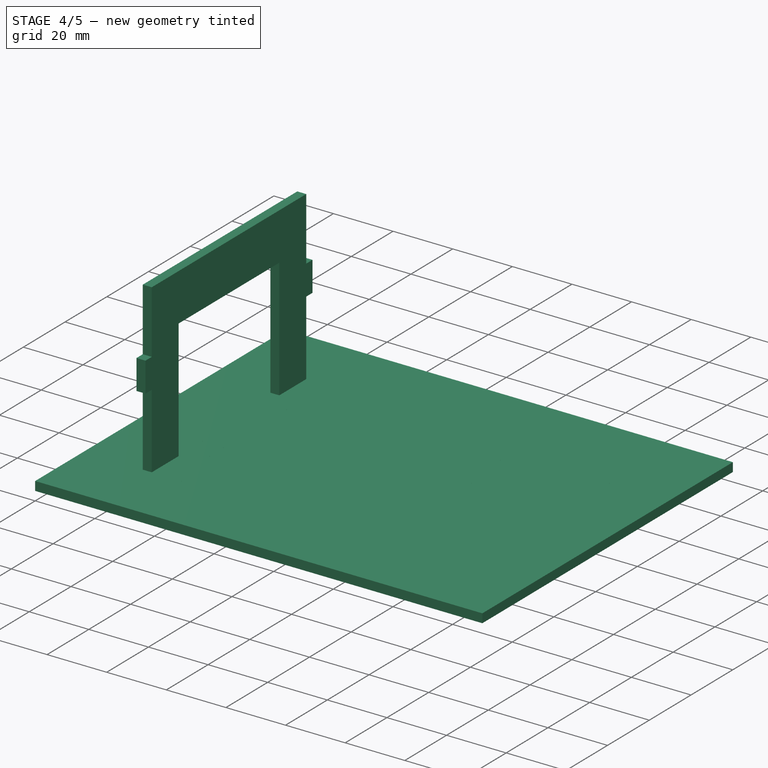
[diagram: stage 4 of 5 — iso view after this stage's code; geometry added in this stage tinted green]
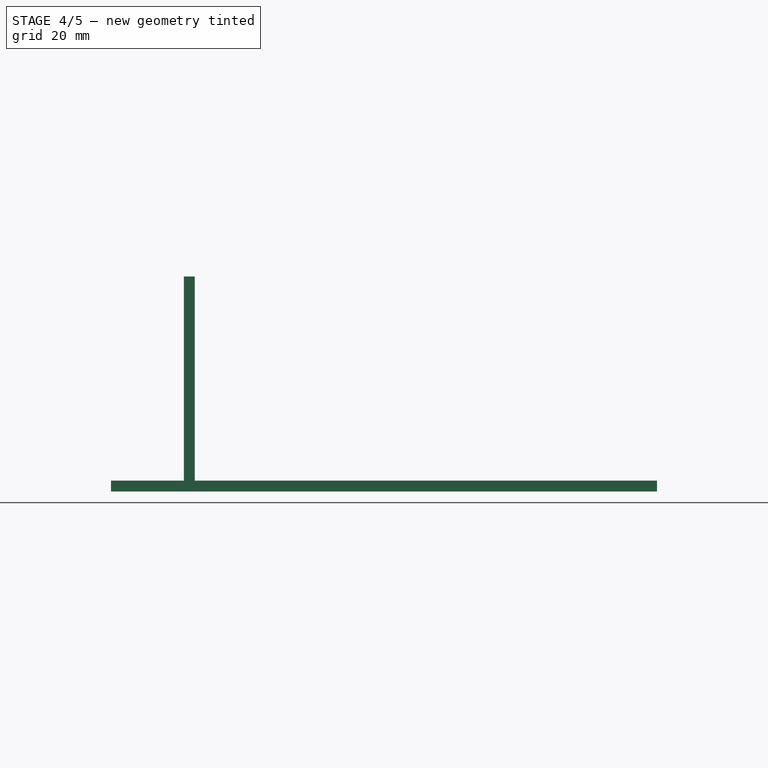
[diagram: stage 4 of 5 — front view after this stage's code; geometry added in this stage tinted green]
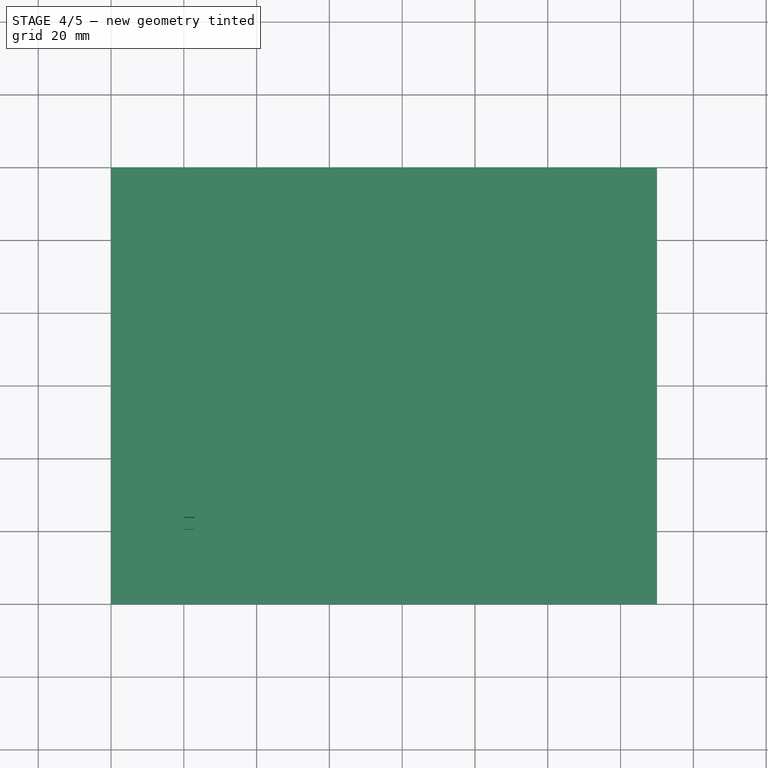
[diagram: stage 4 of 5 — top view after this stage's code; geometry added in this stage tinted green]
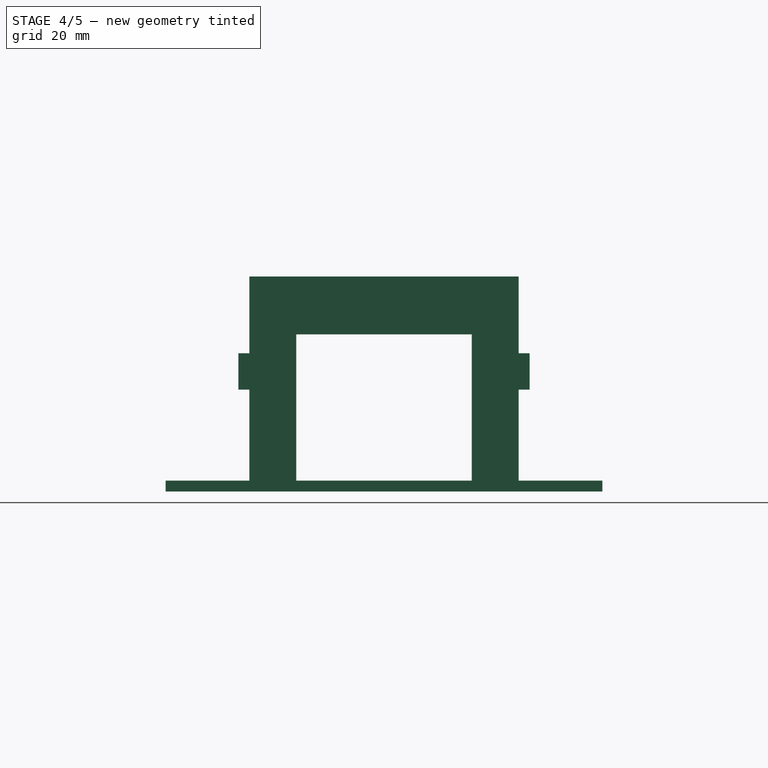
[diagram: stage 4 of 5 — right view after this stage's code; geometry added in this stage tinted green]
FEATURE [Sketcher::SketchObject] Sketch019
  ExternalGeometry = -> [MultiTransform009]
  MapMode = 5
  Placement = pos=(0,0,3) rot=(0,0,1;0rad)
  Support = -> [MultiTransform009]
  sketch-geometry (10):
    g0: LineSegment StartX=7.5 StartY=80 StartZ=0 EndX=12.5 EndY=80 EndZ=0
    g1: LineSegment StartX=12.5 StartY=80 StartZ=0 EndX=12.5 EndY=77 EndZ=0
    g2: LineSegment StartX=12.5 StartY=77 StartZ=0 EndX=7.5 EndY=77 EndZ=0
    g3: LineSegment StartX=7.5 StartY=77 StartZ=0 EndX=7.5 EndY=80 EndZ=0
    g4: LineSegment [constr] StartX=-2e-16 StartY=80 StartZ=0 EndX=110 EndY=80 EndZ=0
    g5: LineSegment [constr] StartX=110 StartY=80 StartZ=0 EndX=110 EndY=0 EndZ=0
    g6: LineSegment [constr] StartX=110 StartY=0 StartZ=0 EndX=0 EndY=0 EndZ=0
    g7: LineSegment [constr] StartX=-2e-16 StartY=0 StartZ=0 EndX=-2e-16 EndY=80 EndZ=0
    g8: GeomPoint X=-1e-16 Y=40 Z=0
    g9: LineSegment [constr] StartX=-1e-16 StartY=40 StartZ=0 EndX=110 EndY=40 EndZ=0
  constraints (28):
    c: Coincident(g0,g1)
    c: Coincident(g1,g2)
    c: Coincident(g2,g3)
    c: Coincident(g3,g0)
    c: Horizontal(g0)
    c: Horizontal(g2)
    c: Vertical(g1)
    c: Vertical(g3)
    c: DistanceX(g0,g0) = 5
    c: DistanceY(g1,g1) = 3
    c: Coincident(g4,g5)
    c: Coincident(g5,g6)
    c: Coincident(g6,g7)
    c: Coincident(g7,g4)
    c: Horizontal(g4)
    c: Horizontal(g6)
    c: Vertical(g5)
    c: Vertical(g7)
    c: DistanceX(g-6,g4) = 20
    c: DistanceY(g4,g-6) = 20
    c: DistanceX(g4,g4) = 110
    c: DistanceY(g5,g5) = 80
    c: DistanceY(g0,g4) = 0
    c: DistanceX(g4,g0) = 7.5
    c: Symmetric(g4,g-1,g8)
    c: Coincident(g9,g8)
    c: Horizontal(g9)
    c: DistanceX(g9,g4) = 0
FEATURE [PartDesign::Pocket] Pocket015
  BaseFeature = -> MultiTransform009
  Length = 0
  Length2 = 100
  Profile = -> Sketch019
  Type = 3
  UpToFace = -> MultiTransform009 [Face4]
FEATURE [PartDesign::LinearPattern] LinearPattern008
  Direction = -> Sketch019 [Axis0]
  Length = 90
  Occurrences = 10
FEATURE [PartDesign::Mirrored] Mirrored013
  MirrorPlane = -> Sketch019 [Axis4]
FEATURE [PartDesign::MultiTransform] MultiTransform010
  BaseFeature = -> Pocket015
  Originals = -> [Pocket015]
  Transformations = -> [LinearPattern008,Mirrored013]
FEATURE [Sketcher::SketchObject] Sketch020
  ExternalGeometry = -> [MultiTransform010]
  MapMode = 5
  Placement = pos=(0,0,3) rot=(0,0,1;0rad)
  Support = -> [MultiTransform010]
  sketch-geometry (4):
    g0: LineSegment StartX=3 StartY=77 StartZ=0 EndX=107 EndY=77 EndZ=0
    g1: LineSegment StartX=107 StartY=77 StartZ=0 EndX=107 EndY=3 EndZ=0
    g2: LineSegment StartX=107 StartY=3 StartZ=0 EndX=3 EndY=3 EndZ=0
    g3: LineSegment StartX=3 StartY=3 StartZ=0 EndX=3 EndY=77 EndZ=0
  constraints (12):
    c: Coincident(g0,g1)
    c: Coincident(g1,g2)
    c: Coincident(g2,g3)
    c: Coincident(g3,g0)
    c: Horizontal(g0)
    c: Horizontal(g2)
    c: Vertical(g1)
    c: Vertical(g3)
    c: DistanceY(g0,g-4) = 23
    c: DistanceX(g-4,g0) = 23
    c: DistanceX(g0,g0) = 104
    c: DistanceY(g1,g1) = 74
FEATURE [PartDesign::Pocket] Pocket016
  BaseFeature = -> MultiTransform010
  Length = 0
  Length2 = 100
  Profile = -> Sketch020
  Type = 3
  UpToFace = -> MultiTransform010 [Face4]
FEATURE [PartDesign::Body] Body003  label="Short_Side"
  Group = -> [Sketch013,Pad003,Sketch012,Pocket010,MultiTransform005,LinearPattern005,Mirrored006,Sketch014,Pocket011,MultiTransform006,LinearPattern006,Mirrored007,Sketch015,Pocket012,MultiTransform007,Mirrored008,Mirrored009]
  Origin = -> Origin003
  Placement = pos=(3,0,0) rot=(0,-1,0;1.5708rad)
  Tip = -> MultiTransform007
FEATURE [PartDesign::MultiTransform] MultiTransform006
  BaseFeature = -> Pocket011
  Originals = -> [Pocket011]
  Transformations = -> [LinearPattern006,Mirrored007]
FEATURE [PartDesign::LinearPattern] LinearPattern006
  Direction = -> MultiTransform006 [Edge84]
  Length = 50
  Occurrences = 6
FEATURE [Sketcher::SketchObject] Sketch015
  ExternalGeometry = -> [MultiTransform006]
  MapMode = 5
  Placement = pos=(0,0,3) rot=(0,0,1;0rad)
  Support = -> [MultiTransform006]
  sketch-geometry (9):
    g0: LineSegment StartX=3 StartY=80 StartZ=0 EndX=0 EndY=80 EndZ=0
    g1: LineSegment StartX=0 StartY=80 StartZ=0 EndX=0 EndY=72.5 EndZ=0
    g2: LineSegment StartX=0 StartY=72.5 StartZ=0 EndX=3 EndY=72.5 EndZ=0
    g3: LineSegment StartX=3 StartY=72.5 StartZ=0 EndX=3 EndY=80 EndZ=0
    g4: LineSegment [constr] StartX=0 StartY=80 StartZ=0 EndX=80 EndY=80 EndZ=0
    g5: GeomPoint X=40 Y=80 Z=0
    g6: LineSegment [constr] StartX=40 StartY=80 StartZ=0 EndX=40 EndY=0 EndZ=0
    g7: GeomPoint X=40 Y=40 Z=0
    g8: LineSegment [constr] StartX=0 StartY=40 StartZ=0 EndX=80 EndY=40 EndZ=0
  constraints (22):
    c: Coincident(g0,g1)
    c: Coincident(g1,g2)
    c: Coincident(g2,g3)
    c: Coincident(g3,g0)
    c: Horizontal(g0)
    c: Horizontal(g2)
    c: Vertical(g1)
    c: Vertical(g3)
    c: DistanceY(g3,g3) = 7.5
    c: DistanceX(g0,g0) = 3
    c: Coincident(g0,g-3)
    c: Coincident(g4,g0)
    c: Coincident(g4,g-4)
    c: Symmetric(g0,g4,g5)
    c: Coincident(g6,g5)
    c: Vertical(g6)
    c: DistanceY(g-5,g6) = 0
    c: Symmetric(g5,g6,g7)
    c: Horizontal(g8)
    c: DistanceY(g7,g8) = 0
    c: DistanceX(g8,g4) = 0
    c: DistanceX(g0,g8) = 0
FEATURE [PartDesign::Pocket] Pocket012  label="Corner_hole001"
  BaseFeature = -> MultiTransform006
  Length = 0
  Length2 = 100
  Profile = -> Sketch015
  Type = 3
  UpToFace = -> MultiTransform006 [Face2]
FEATURE [PartDesign::MultiTransform] MultiTransform007
  BaseFeature = -> Pocket012
  Originals = -> [Pocket012]
  Transformations = -> [Mirrored008,Mirrored009]
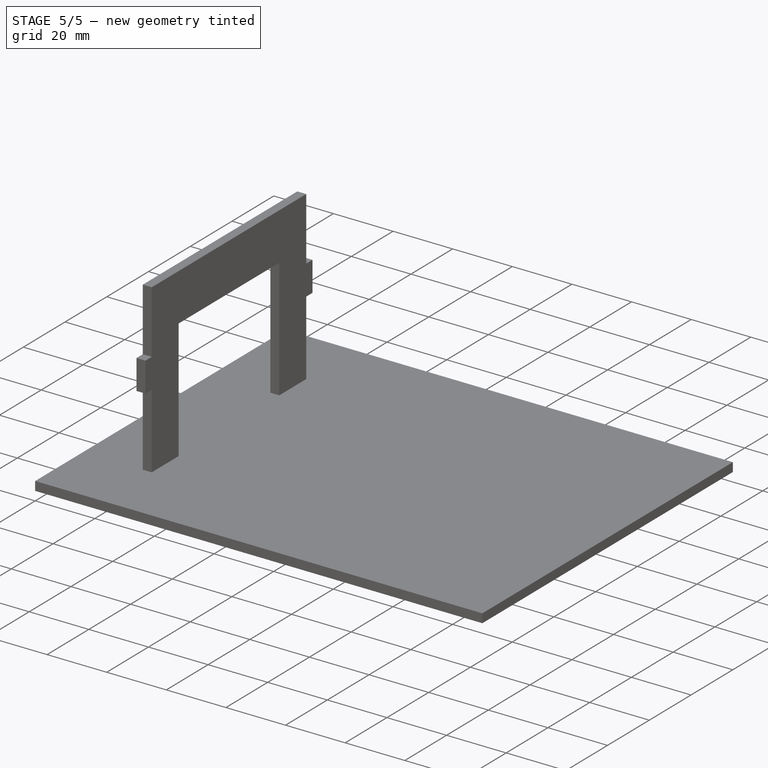
[diagram: stage 5 of 5 — iso view after this stage's code; geometry added in this stage tinted green]
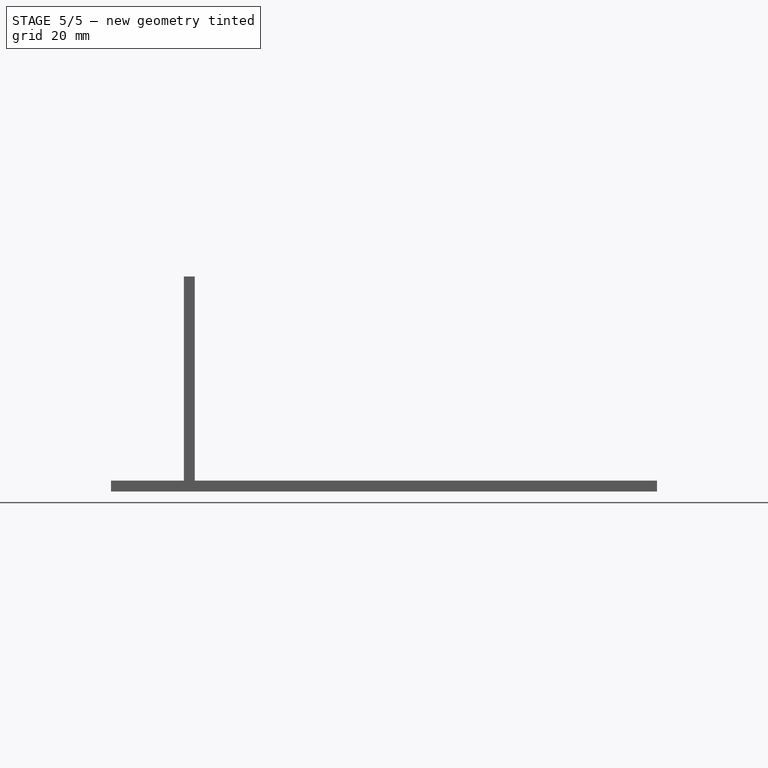
[diagram: stage 5 of 5 — front view after this stage's code; geometry added in this stage tinted green]
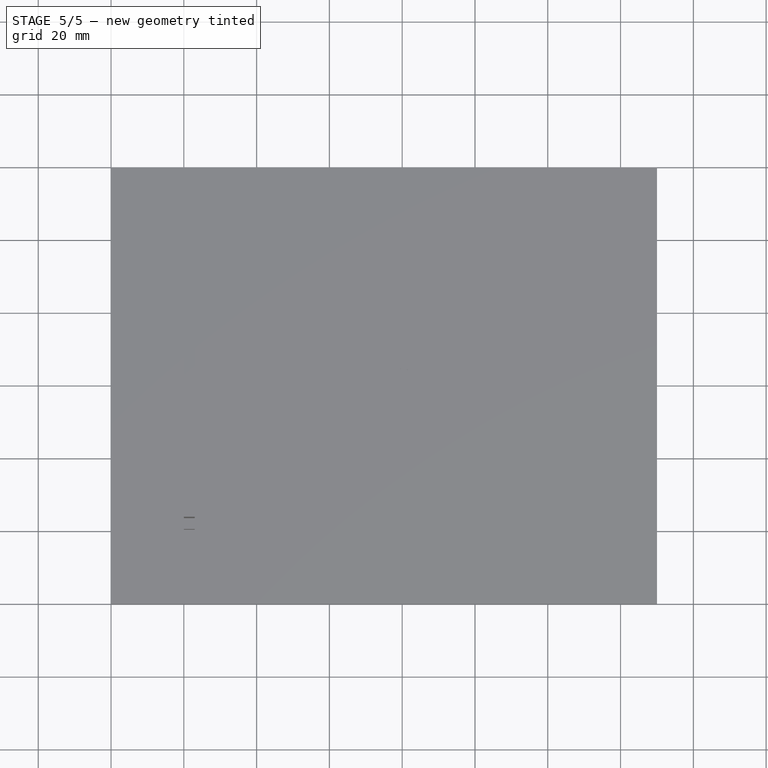
[diagram: stage 5 of 5 — top view after this stage's code; geometry added in this stage tinted green]
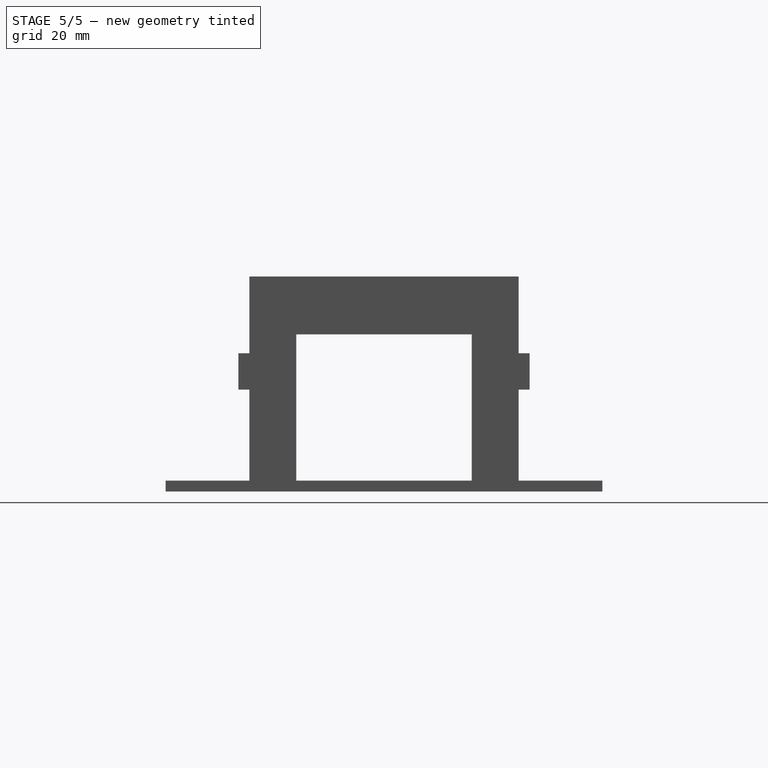
[diagram: stage 5 of 5 — right view after this stage's code; geometry added in this stage tinted green]
FEATURE [Sketcher::SketchObject] Sketch
  MapMode = 5
  Support = -> [XY_Plane]
  sketch-geometry (4):
    g0: LineSegment StartX=0 StartY=0 StartZ=0 EndX=110 EndY=0 EndZ=0
    g1: LineSegment StartX=110 StartY=0 StartZ=0 EndX=110 EndY=80 EndZ=0
    g2: LineSegment StartX=110 StartY=80 StartZ=0 EndX=0 EndY=80 EndZ=0
    g3: LineSegment StartX=0 StartY=80 StartZ=0 EndX=0 EndY=0 EndZ=0
  constraints (11):
    c: Coincident(g0,g1)
    c: Coincident(g1,g2)
    c: Coincident(g2,g3)
    c: Coincident(g3,g0)
    c: Horizontal(g0)
    c: Horizontal(g2)
    c: Vertical(g1)
    c: Vertical(g3)
    c: DistanceX(g2,g2) = 110
    c: DistanceY(g1,g1) = 80
    c: Coincident(g0,g-1)
FEATURE [PartDesign::Pad] Pad  label="Frame"
  Length = 3
  Length2 = 100
  Profile = -> Sketch
  Type = 0
FEATURE [Sketcher::SketchObject] Sketch001
  ExternalGeometry = -> [Pad]
  MapMode = 5
  Placement = pos=(0,0,3) rot=(0,0,1;0rad)
  Support = -> [Pad]
  sketch-geometry (7):
    g0: LineSegment StartX=7.5 StartY=0 StartZ=0 EndX=12.5 EndY=0 EndZ=0
    g1: LineSegment StartX=12.5 StartY=0 StartZ=0 EndX=12.5 EndY=3 EndZ=0
    g2: LineSegment StartX=12.5 StartY=3 StartZ=0 EndX=7.5 EndY=3 EndZ=0
    g3: LineSegment StartX=7.5 StartY=3 StartZ=0 EndX=7.5 EndY=0 EndZ=0
    g4: GeomPoint X=0 Y=40 Z=0
    g5: GeomPoint X=110 Y=40 Z=0
    g6: LineSegment [constr] StartX=0 StartY=40 StartZ=0 EndX=110 EndY=40 EndZ=0
  constraints (16):
    c: Coincident(g0,g1)
    c: Coincident(g1,g2)
    c: Coincident(g2,g3)
    c: Coincident(g3,g0)
    c: Horizontal(g0)
    c: Horizontal(g2)
    c: Vertical(g1)
    c: Vertical(g3)
    c: DistanceX(g2,g2) = 5
    c: DistanceY(g1,g1) = 3
    c: DistanceX(g0) = 7.5
    c: DistanceY(g0) = 0
    c: Symmetric(g-4,g-1,g4)
    c: Symmetric(g-3,g-3,g5)
    c: Coincident(g6,g4)
    c: Coincident(g6,g5)
FEATURE [PartDesign::Pocket] Pocket  label="Horizontal_hole"
  BaseFeature = -> Pad
  Length = 0
  Length2 = 100
  Profile = -> Sketch001
  Type = 3
  UpToFace = -> Pad [Face5]
FEATURE [PartDesign::LinearPattern] LinearPattern
  Direction = -> X_Axis
  Length = 90
  Occurrences = 10
FEATURE [PartDesign::Mirrored] Mirrored
  MirrorPlane = -> Sketch001 [Axis0]
FEATURE [PartDesign::MultiTransform] MultiTransform
  BaseFeature = -> Pocket
  Originals = -> [Pocket]
  Transformations = -> [LinearPattern,Mirrored]
FEATURE [Sketcher::SketchObject] Sketch002
  ExternalGeometry = -> [MultiTransform]
  MapMode = 5
  Placement = pos=(0,0,3) rot=(0,0,1;0rad)
  Support = -> [MultiTransform]
  sketch-geometry (9):
    g0: LineSegment StartX=0 StartY=72.5 StartZ=0 EndX=3 EndY=72.5 EndZ=0
    g1: LineSegment StartX=3 StartY=72.5 StartZ=0 EndX=3 EndY=67.5 EndZ=0
    g2: LineSegment StartX=3 StartY=67.5 StartZ=0 EndX=0 EndY=67.5 EndZ=0
    g3: LineSegment StartX=0 StartY=67.5 StartZ=0 EndX=0 EndY=72.5 EndZ=0
    g4: GeomPoint X=0 Y=40 Z=0
    g5: GeomPoint X=110 Y=40 Z=0
    g6: LineSegment [constr] StartX=0 StartY=40 StartZ=0 EndX=110 EndY=40 EndZ=0
    g7: GeomPoint X=55 Y=40 Z=0
    g8: LineSegment [constr] StartX=55 StartY=80 StartZ=0 EndX=55 EndY=0 EndZ=0
  constraints (21):
    c: Coincident(g0,g1)
    c: Coincident(g1,g2)
    c: Coincident(g2,g3)
    c: Coincident(g3,g0)
    c: Horizontal(g0)
    c: Horizontal(g2)
    c: Vertical(g1)
    c: Vertical(g3)
    c: DistanceY(g1,g1) = 5
    c: DistanceX(g0,g0) = 3
    c: DistanceX(g-3,g0) = 0
    c: DistanceY(g0,g-3) = 7.5
    c: Symmetric(g-3,g-1,g4)
    c: Symmetric(g-4,g-4,g5)
    c: Coincident(g6,g4)
    c: Coincident(g6,g5)
    c: Symmetric(g5,g4,g7)
    c: Vertical(g8)
    c: DistanceX(g8,g7) = 0
    c: DistanceY(g8,g-5) = 0
    c: DistanceY(g-6,g8) = 0
FEATURE [PartDesign::Pocket] Pocket001  label="Vertical_hole"
  BaseFeature = -> MultiTransform
  Length = 0
  Length2 = 100
  Profile = -> Sketch002
  Type = 3
  UpToFace = -> MultiTransform [Face2]
FEATURE [PartDesign::LinearPattern] LinearPattern001
  Direction = -> Y_Axis
  Length = 60
  Occurrences = 7
  Reversed = true
FEATURE [PartDesign::Mirrored] Mirrored001
  MirrorPlane = -> Sketch002 [Axis1]
FEATURE [PartDesign::MultiTransform] MultiTransform001
  BaseFeature = -> Pocket001
  Originals = -> [Pocket001]
  Transformations = -> [LinearPattern001,Mirrored001]
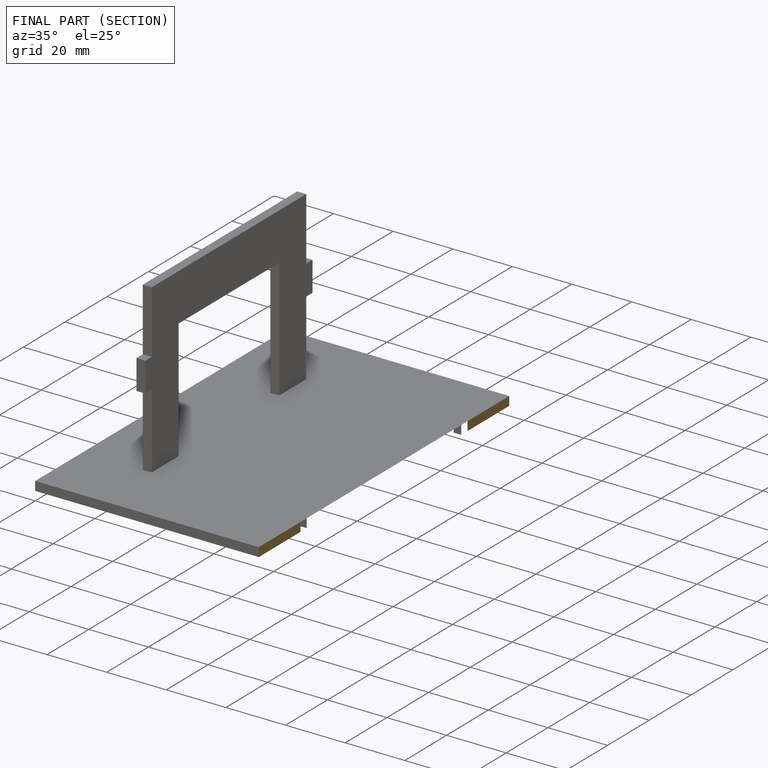
[diagram: finished part — half-section view (interior)]
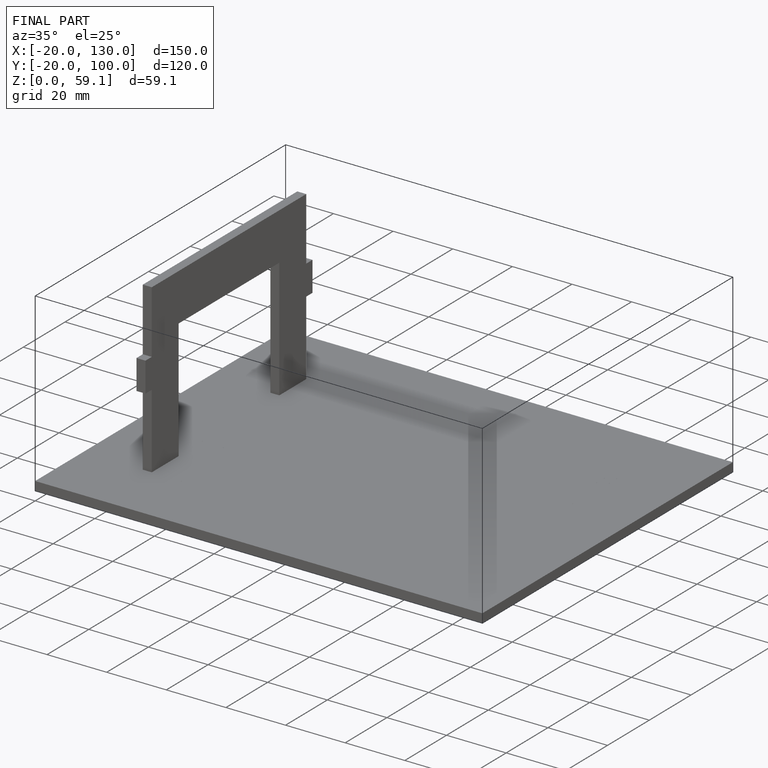
[diagram: finished part — iso view with bounding-box wireframe]
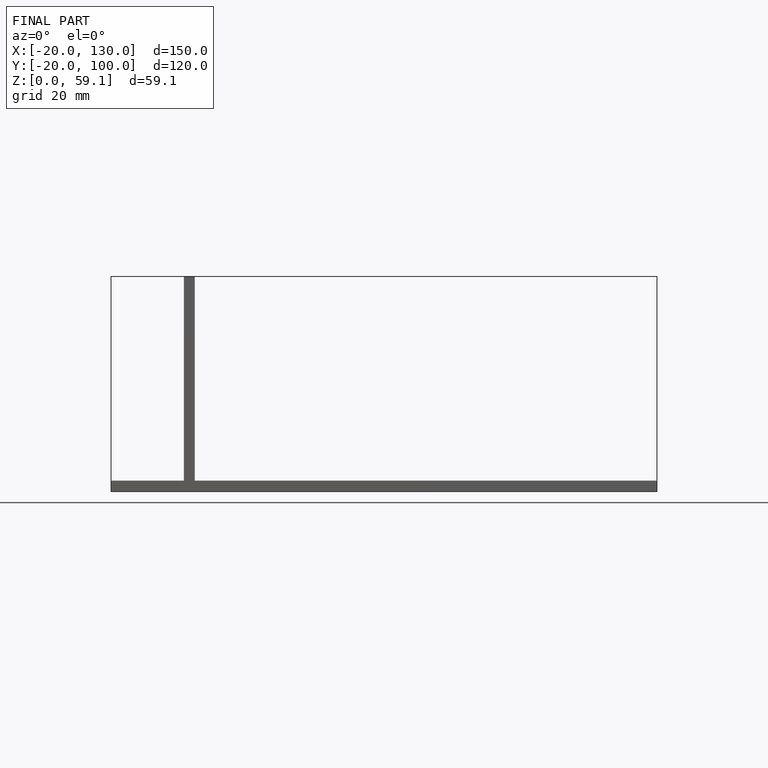
[diagram: finished part — front view with bounding-box wireframe]
